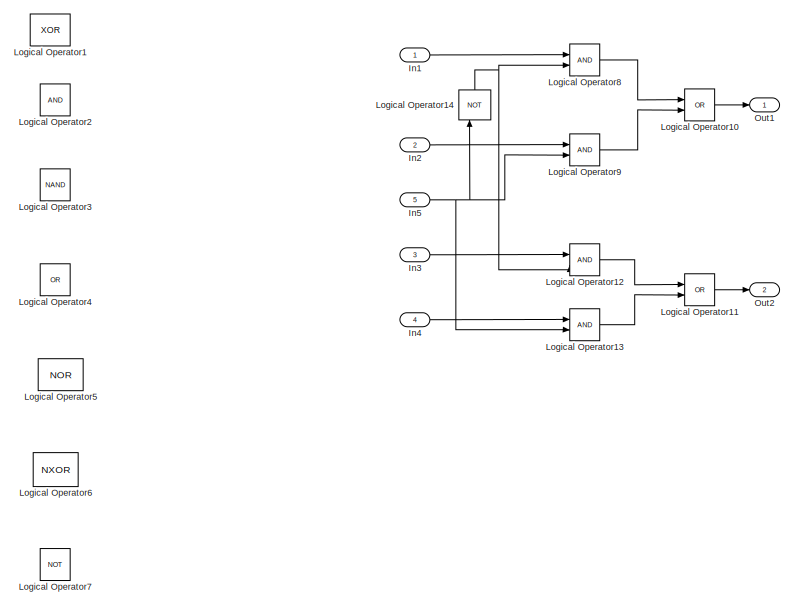
[diagram: root canvas - part 1/11, top right region]
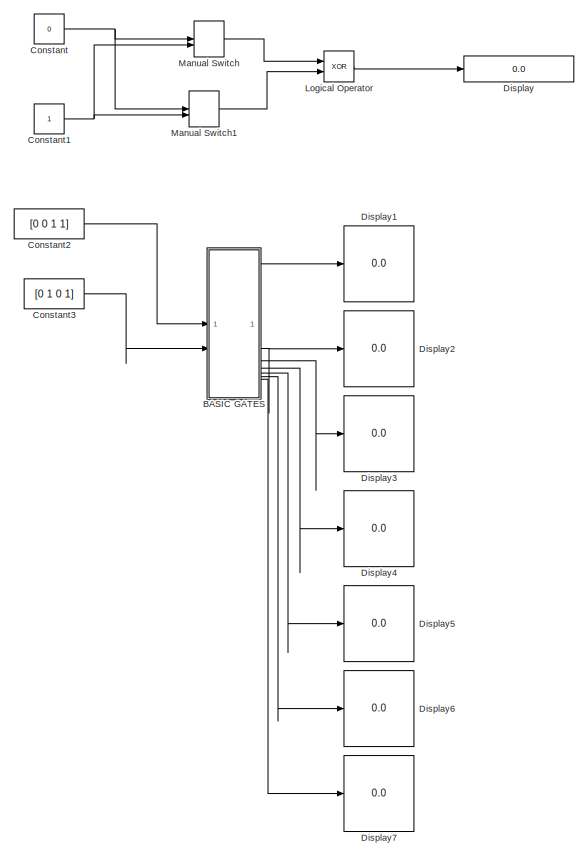
[diagram: root canvas - part 2/11, top left region]
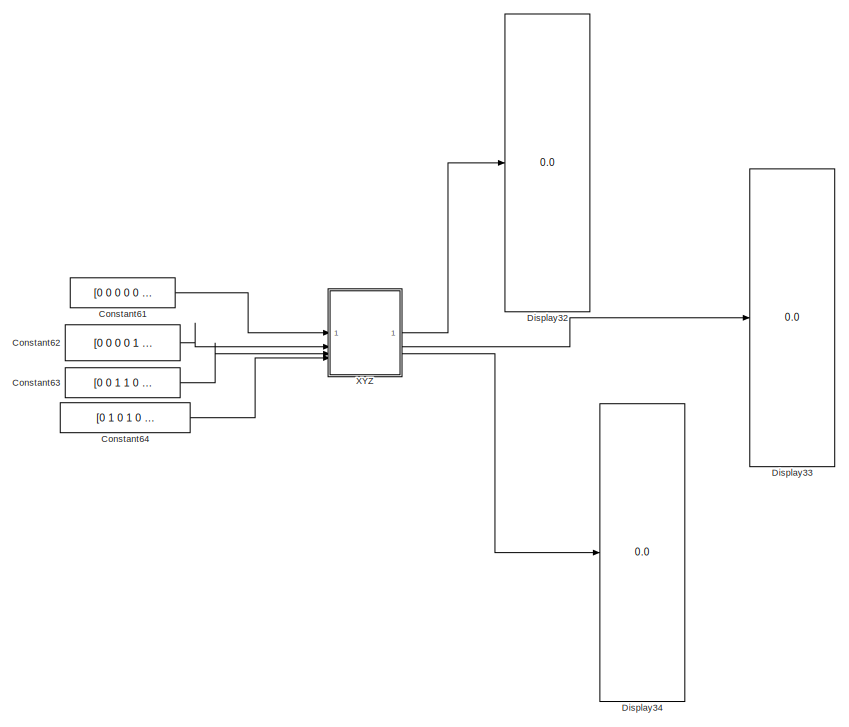
[diagram: root canvas - part 3/11, top right region]
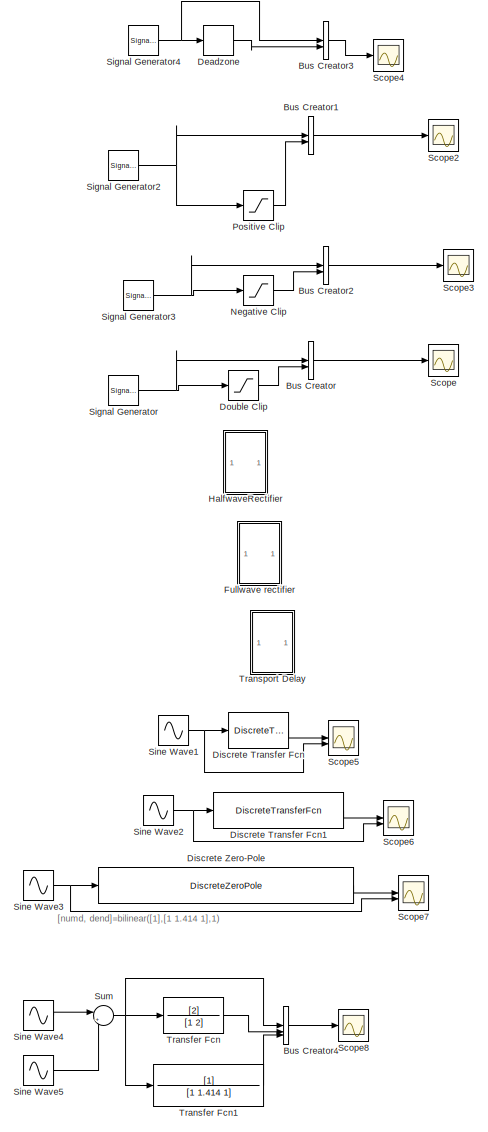
[diagram: root canvas - part 4/11, top left region]
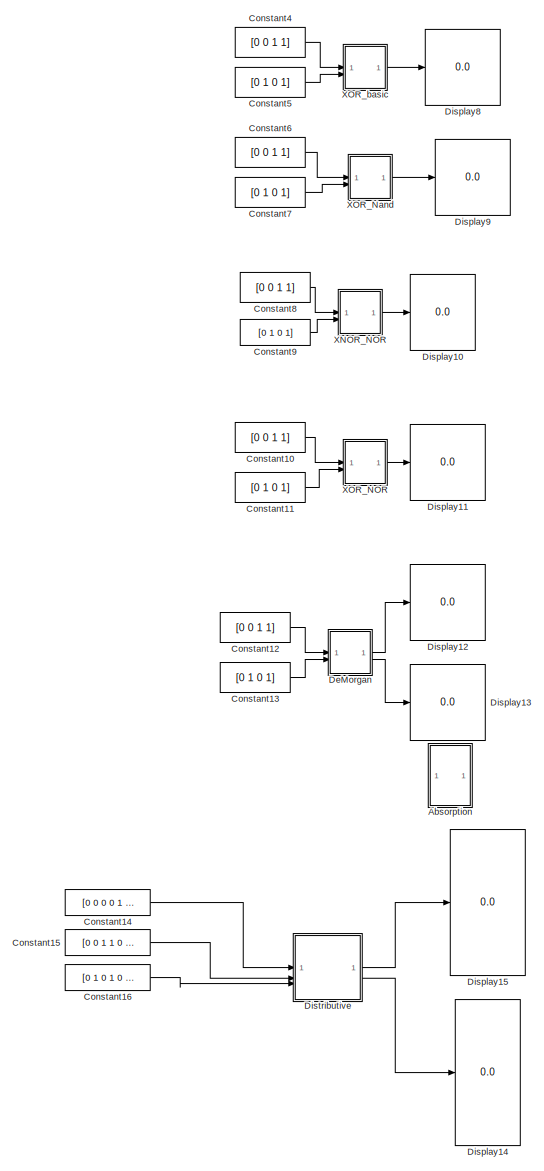
[diagram: root canvas - part 5/11, top left region]
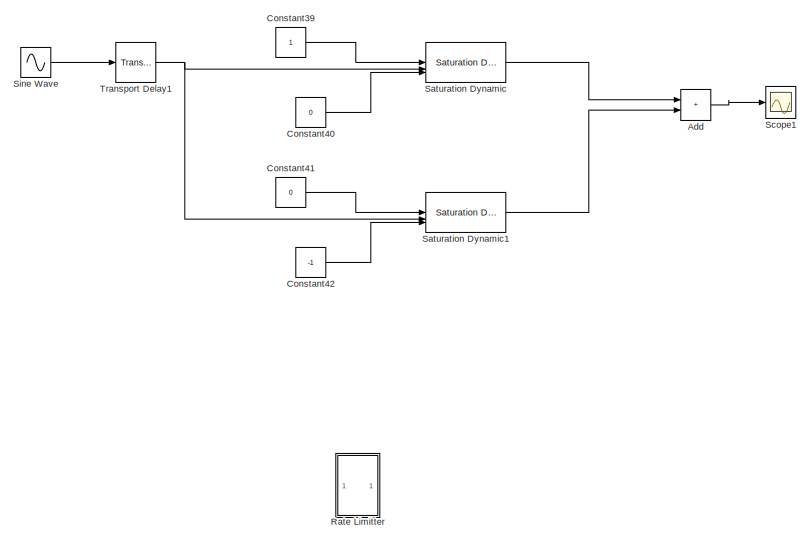
[diagram: root canvas - part 6/11, top center region]
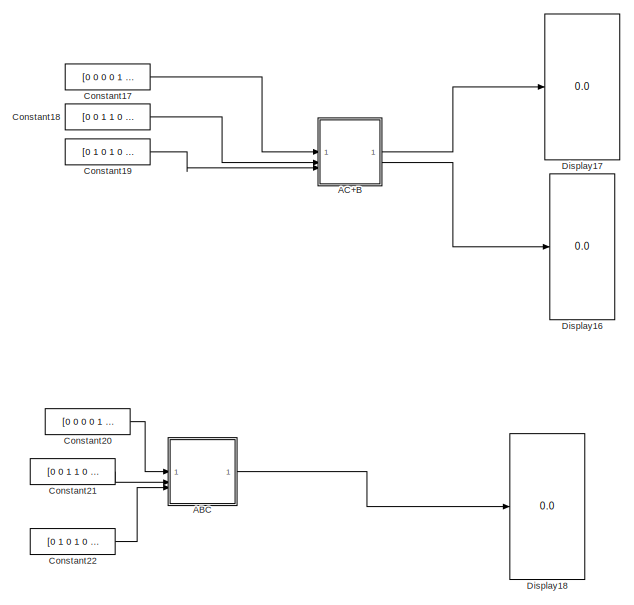
[diagram: root canvas - part 7/11, top left region]
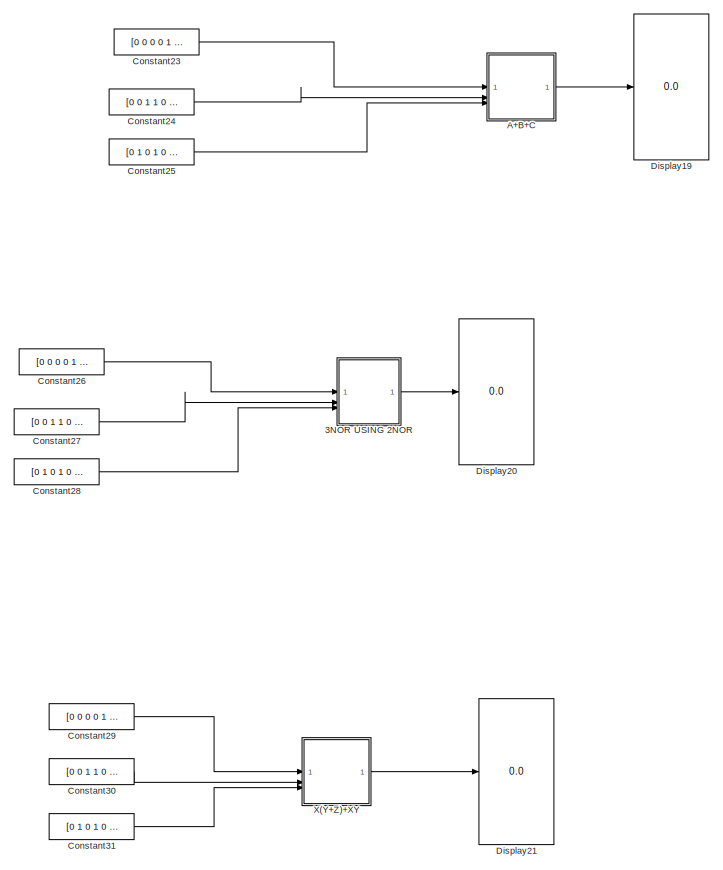
[diagram: root canvas - part 8/11, middle left region]
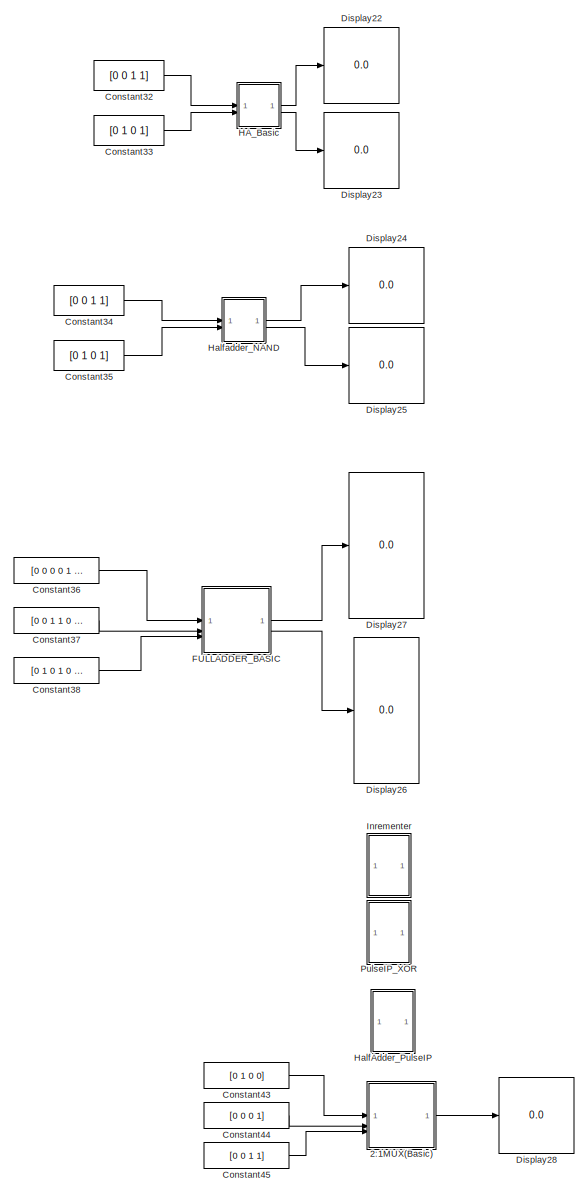
[diagram: root canvas - part 9/11, middle left region]
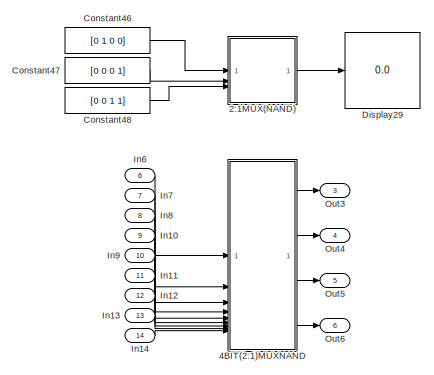
[diagram: root canvas - part 10/11, bottom left region]
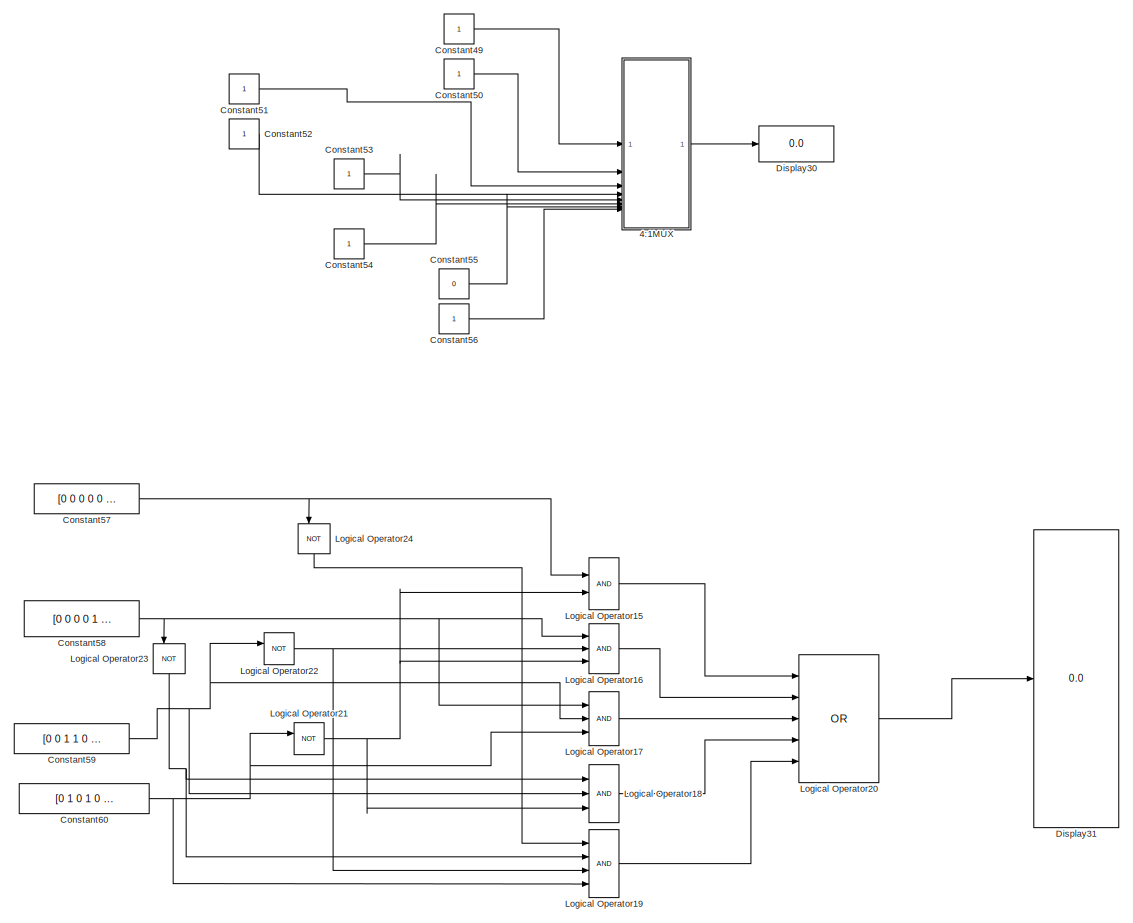
[diagram: root canvas - part 11/11, bottom left region]
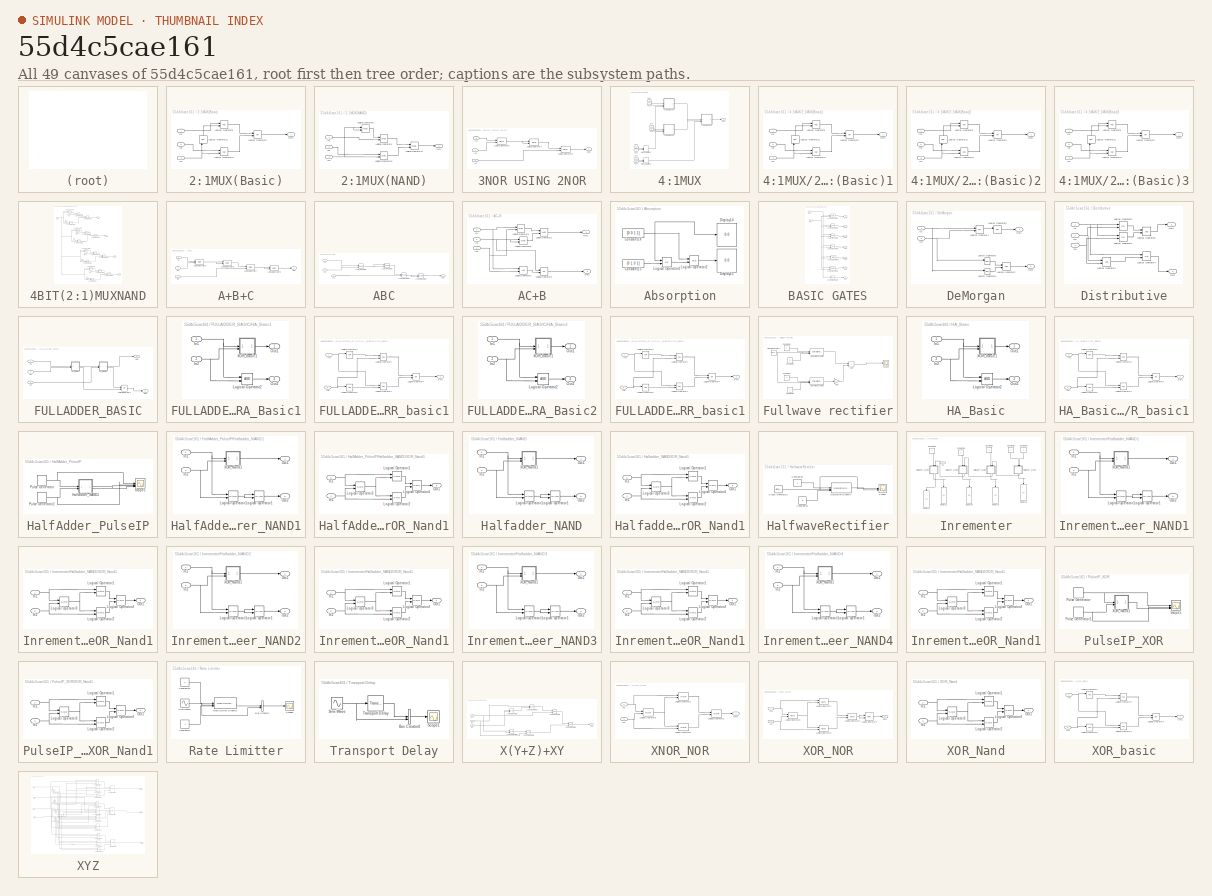
[diagram: thumbnail index - all 49 canvases of the model, root first then tree order]
MODEL slx_55d4c5cae161
KIND model
CONFIG AbsTol = auto
CONFIG EnableMultiTasking = off
CONFIG FixedStep = auto
CONFIG MaxStep = auto
CONFIG MinStep = auto
CONFIG RelTol = 1e-3
CONFIG SampleTimeConstraint = Unconstrained
CONFIG SolverName = VariableStepAuto
CONFIG StartTime = 0.0
CONFIG StopTime = 10.0
BLOCK [SubSystem] 2:1MUX(Basic)
BLOCK [Inport] 2:1MUX(Basic)/In1
BLOCK [Inport] 2:1MUX(Basic)/In2
  Port = 2
BLOCK [Inport] 2:1MUX(Basic)/In3
  Port = 3
BLOCK [Logic] 2:1MUX(Basic)/Logical Operator10
  AllPortsSameDT = off
  IconShape = distinctive
  OutDataTypeStr = boolean
BLOCK [Logic] 2:1MUX(Basic)/Logical Operator11
  AllPortsSameDT = off
  IconShape = distinctive
  NameLocation = right
  Operator = NOT
  OutDataTypeStr = boolean
BLOCK [Logic] 2:1MUX(Basic)/Logical Operator8
  AllPortsSameDT = off
  IconShape = distinctive
  OutDataTypeStr = boolean
BLOCK [Logic] 2:1MUX(Basic)/Logical Operator9
  AllPortsSameDT = off
  IconShape = distinctive
  Operator = OR
  OutDataTypeStr = boolean
BLOCK [Outport] 2:1MUX(Basic)/Out1
BLOCK [SubSystem] 2:1MUX(NAND)
BLOCK [Inport] 2:1MUX(NAND)/In1
BLOCK [Inport] 2:1MUX(NAND)/In2
  Port = 2
BLOCK [Inport] 2:1MUX(NAND)/In3
  Port = 3
BLOCK [Logic] 2:1MUX(NAND)/Logical Operator10
  AllPortsSameDT = off
  IconShape = distinctive
  Operator = NAND
  OutDataTypeStr = boolean
BLOCK [Logic] 2:1MUX(NAND)/Logical Operator11
  AllPortsSameDT = off
  IconShape = distinctive
  Operator = NAND
  OutDataTypeStr = boolean
BLOCK [Logic] 2:1MUX(NAND)/Logical Operator8
  AllPortsSameDT = off
  IconShape = distinctive
  Operator = NAND
  OutDataTypeStr = boolean
BLOCK [Logic] 2:1MUX(NAND)/Logical Operator9
  AllPortsSameDT = off
  IconShape = distinctive
  Operator = NAND
  OutDataTypeStr = boolean
BLOCK [Outport] 2:1MUX(NAND)/Out1
BLOCK [SubSystem] 3NOR USING 2NOR
BLOCK [Inport] 3NOR USING 2NOR/In1
BLOCK [Inport] 3NOR USING 2NOR/In2
  Port = 2
BLOCK [Inport] 3NOR USING 2NOR/In3
  Port = 3
BLOCK [Logic] 3NOR USING 2NOR/Logical Operator1
  AllPortsSameDT = off
  IconShape = distinctive
  Operator = NOR
  OutDataTypeStr = boolean
BLOCK [Logic] 3NOR USING 2NOR/Logical Operator2
  AllPortsSameDT = off
  IconShape = distinctive
  Operator = NOR
  OutDataTypeStr = boolean
BLOCK [Logic] 3NOR USING 2NOR/Logical Operator5
  AllPortsSameDT = off
  IconShape = distinctive
  Operator = NOR
  OutDataTypeStr = boolean
BLOCK [Outport] 3NOR USING 2NOR/Out1
BLOCK [SubSystem] 4:1MUX
BLOCK [SubSystem] 4:1MUX/2:1MUX(Basic)1
BLOCK [Inport] 4:1MUX/2:1MUX(Basic)1/In1
BLOCK [Inport] 4:1MUX/2:1MUX(Basic)1/In2
  Port = 2
BLOCK [Inport] 4:1MUX/2:1MUX(Basic)1/In3
  Port = 3
BLOCK [Logic] 4:1MUX/2:1MUX(Basic)1/Logical Operator10
  AllPortsSameDT = off
  IconShape = distinctive
  OutDataTypeStr = boolean
BLOCK [Logic] 4:1MUX/2:1MUX(Basic)1/Logical Operator11
  AllPortsSameDT = off
  IconShape = distinctive
  NameLocation = right
  Operator = NOT
  OutDataTypeStr = boolean
BLOCK [Logic] 4:1MUX/2:1MUX(Basic)1/Logical Operator8
  AllPortsSameDT = off
  IconShape = distinctive
  OutDataTypeStr = boolean
BLOCK [Logic] 4:1MUX/2:1MUX(Basic)1/Logical Operator9
  AllPortsSameDT = off
  IconShape = distinctive
  Operator = OR
  OutDataTypeStr = boolean
BLOCK [Outport] 4:1MUX/2:1MUX(Basic)1/Out1
BLOCK [SubSystem] 4:1MUX/2:1MUX(Basic)2
BLOCK [Inport] 4:1MUX/2:1MUX(Basic)2/In1
BLOCK [Inport] 4:1MUX/2:1MUX(Basic)2/In2
  Port = 2
BLOCK [Inport] 4:1MUX/2:1MUX(Basic)2/In3
  Port = 3
BLOCK [Logic] 4:1MUX/2:1MUX(Basic)2/Logical Operator10
  AllPortsSameDT = off
  IconShape = distinctive
  OutDataTypeStr = boolean
BLOCK [Logic] 4:1MUX/2:1MUX(Basic)2/Logical Operator11
  AllPortsSameDT = off
  IconShape = distinctive
  NameLocation = right
  Operator = NOT
  OutDataTypeStr = boolean
BLOCK [Logic] 4:1MUX/2:1MUX(Basic)2/Logical Operator8
  AllPortsSameDT = off
  IconShape = distinctive
  OutDataTypeStr = boolean
BLOCK [Logic] 4:1MUX/2:1MUX(Basic)2/Logical Operator9
  AllPortsSameDT = off
  IconShape = distinctive
  Operator = OR
  OutDataTypeStr = boolean
BLOCK [Outport] 4:1MUX/2:1MUX(Basic)2/Out1
BLOCK [SubSystem] 4:1MUX/2:1MUX(Basic)3
BLOCK [Inport] 4:1MUX/2:1MUX(Basic)3/In1
BLOCK [Inport] 4:1MUX/2:1MUX(Basic)3/In2
  Port = 2
BLOCK [Inport] 4:1MUX/2:1MUX(Basic)3/In3
  Port = 3
BLOCK [Logic] 4:1MUX/2:1MUX(Basic)3/Logical Operator10
  AllPortsSameDT = off
  IconShape = distinctive
  OutDataTypeStr = boolean
BLOCK [Logic] 4:1MUX/2:1MUX(Basic)3/Logical Operator11
  AllPortsSameDT = off
  IconShape = distinctive
  NameLocation = right
  Operator = NOT
  OutDataTypeStr = boolean
BLOCK [Logic] 4:1MUX/2:1MUX(Basic)3/Logical Operator8
  AllPortsSameDT = off
  IconShape = distinctive
  OutDataTypeStr = boolean
BLOCK [Logic] 4:1MUX/2:1MUX(Basic)3/Logical Operator9
  AllPortsSameDT = off
  IconShape = distinctive
  Operator = OR
  OutDataTypeStr = boolean
BLOCK [Outport] 4:1MUX/2:1MUX(Basic)3/Out1
BLOCK [Inport] 4:1MUX/In15
BLOCK [Inport] 4:1MUX/In16
  Port = 2
BLOCK [Inport] 4:1MUX/In17
  Port = 3
BLOCK [Inport] 4:1MUX/In18
  Port = 4
BLOCK [Inport] 4:1MUX/In19
  Port = 5
BLOCK [Inport] 4:1MUX/In20
  Port = 6
BLOCK [Inport] 4:1MUX/In21
  Port = 7
BLOCK [Inport] 4:1MUX/In22
  Port = 8
BLOCK [ManualSwitch] 4:1MUX/Manual Switch2
BLOCK [ManualSwitch] 4:1MUX/Manual Switch3
BLOCK [Outport] 4:1MUX/Out7
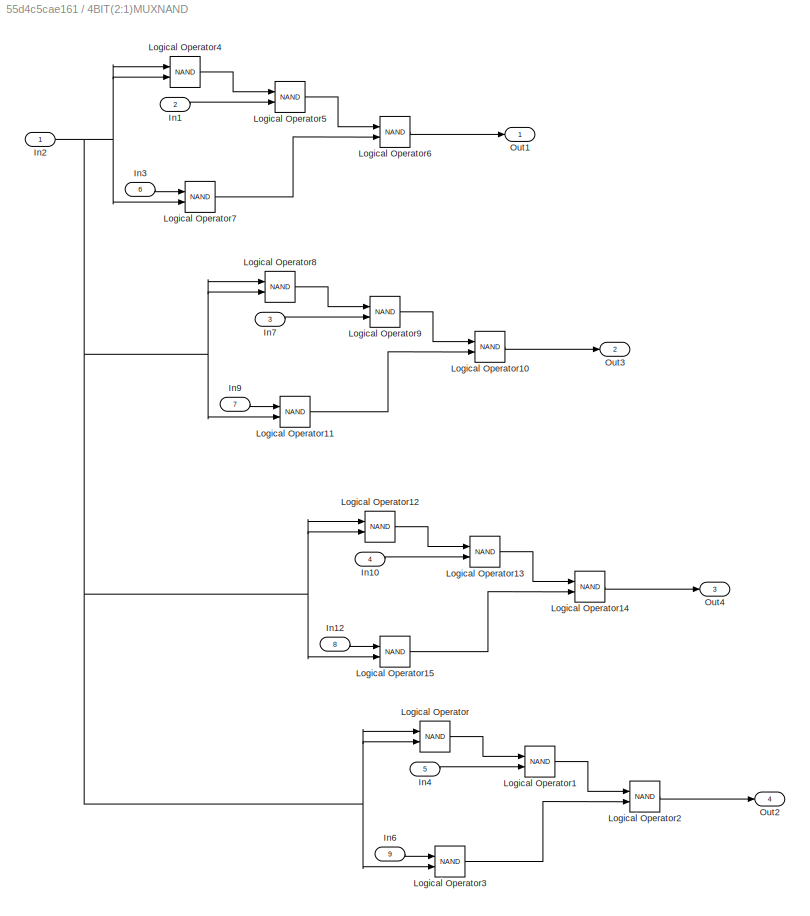
BLOCK [SubSystem] 4BIT(2:1)MUXNAND
BLOCK [Inport] 4BIT(2:1)MUXNAND/In1
  Port = 2
BLOCK [Inport] 4BIT(2:1)MUXNAND/In10
  Port = 4
BLOCK [Inport] 4BIT(2:1)MUXNAND/In12
  Port = 8
BLOCK [Inport] 4BIT(2:1)MUXNAND/In2
BLOCK [Inport] 4BIT(2:1)MUXNAND/In3
  Port = 6
BLOCK [Inport] 4BIT(2:1)MUXNAND/In4
  Port = 5
BLOCK [Inport] 4BIT(2:1)MUXNAND/In6
  Port = 9
BLOCK [Inport] 4BIT(2:1)MUXNAND/In7
  Port = 3
BLOCK [Inport] 4BIT(2:1)MUXNAND/In9
  Port = 7
BLOCK [Logic] 4BIT(2:1)MUXNAND/Logical Operator
  AllPortsSameDT = off
  Operator = NAND
  OutDataTypeStr = boolean
BLOCK [Logic] 4BIT(2:1)MUXNAND/Logical Operator1
  AllPortsSameDT = off
  Operator = NAND
  OutDataTypeStr = boolean
BLOCK [Logic] 4BIT(2:1)MUXNAND/Logical Operator10
  AllPortsSameDT = off
  Operator = NAND
  OutDataTypeStr = boolean
BLOCK [Logic] 4BIT(2:1)MUXNAND/Logical Operator11
  AllPortsSameDT = off
  Operator = NAND
  OutDataTypeStr = boolean
BLOCK [Logic] 4BIT(2:1)MUXNAND/Logical Operator12
  AllPortsSameDT = off
  Operator = NAND
  OutDataTypeStr = boolean
BLOCK [Logic] 4BIT(2:1)MUXNAND/Logical Operator13
  AllPortsSameDT = off
  Operator = NAND
  OutDataTypeStr = boolean
BLOCK [Logic] 4BIT(2:1)MUXNAND/Logical Operator14
  AllPortsSameDT = off
  Operator = NAND
  OutDataTypeStr = boolean
BLOCK [Logic] 4BIT(2:1)MUXNAND/Logical Operator15
  AllPortsSameDT = off
  Operator = NAND
  OutDataTypeStr = boolean
BLOCK [Logic] 4BIT(2:1)MUXNAND/Logical Operator2
  AllPortsSameDT = off
  Operator = NAND
  OutDataTypeStr = boolean
BLOCK [Logic] 4BIT(2:1)MUXNAND/Logical Operator3
  AllPortsSameDT = off
  Operator = NAND
  OutDataTypeStr = boolean
BLOCK [Logic] 4BIT(2:1)MUXNAND/Logical Operator4
  AllPortsSameDT = off
  Operator = NAND
  OutDataTypeStr = boolean
BLOCK [Logic] 4BIT(2:1)MUXNAND/Logical Operator5
  AllPortsSameDT = off
  Operator = NAND
  OutDataTypeStr = boolean
BLOCK [Logic] 4BIT(2:1)MUXNAND/Logical Operator6
  AllPortsSameDT = off
  Operator = NAND
  OutDataTypeStr = boolean
BLOCK [Logic] 4BIT(2:1)MUXNAND/Logical Operator7
  AllPortsSameDT = off
  Operator = NAND
  OutDataTypeStr = boolean
BLOCK [Logic] 4BIT(2:1)MUXNAND/Logical Operator8
  AllPortsSameDT = off
  Operator = NAND
  OutDataTypeStr = boolean
BLOCK [Logic] 4BIT(2:1)MUXNAND/Logical Operator9
  AllPortsSameDT = off
  Operator = NAND
  OutDataTypeStr = boolean
BLOCK [Outport] 4BIT(2:1)MUXNAND/Out1
BLOCK [Outport] 4BIT(2:1)MUXNAND/Out2
  Port = 4
BLOCK [Outport] 4BIT(2:1)MUXNAND/Out3
  Port = 2
BLOCK [Outport] 4BIT(2:1)MUXNAND/Out4
  Port = 3
BLOCK [SubSystem] A+B+C
BLOCK [Inport] A+B+C/In1
BLOCK [Inport] A+B+C/In2
  Port = 2
BLOCK [Inport] A+B+C/In3
  Port = 3
BLOCK [Logic] A+B+C/Logical Operator3
  AllPortsSameDT = off
  IconShape = distinctive
  Operator = NOR
  OutDataTypeStr = boolean
BLOCK [Logic] A+B+C/Logical Operator6
  AllPortsSameDT = off
  IconShape = distinctive
  Operator = NOR
  OutDataTypeStr = boolean
BLOCK [Logic] A+B+C/Logical Operator7
  AllPortsSameDT = off
  IconShape = distinctive
  Operator = NOR
  OutDataTypeStr = boolean
BLOCK [Logic] A+B+C/Logical Operator8
  AllPortsSameDT = off
  IconShape = distinctive
  Operator = NOR
  OutDataTypeStr = boolean
BLOCK [Outport] A+B+C/Out1
BLOCK [SubSystem] ABC
BLOCK [Inport] ABC/In1
BLOCK [Inport] ABC/In2
  Port = 2
BLOCK [Inport] ABC/In3
  Port = 3
BLOCK [Logic] ABC/Logical Operator1
  AllPortsSameDT = off
  IconShape = distinctive
  Operator = NAND
  OutDataTypeStr = boolean
BLOCK [Logic] ABC/Logical Operator2
  AllPortsSameDT = off
  IconShape = distinctive
  Operator = NAND
  OutDataTypeStr = boolean
BLOCK [Logic] ABC/Logical Operator3
  AllPortsSameDT = off
  IconShape = distinctive
  Operator = NAND
  OutDataTypeStr = boolean
BLOCK [Logic] ABC/Logical Operator4
  AllPortsSameDT = off
  IconShape = distinctive
  Operator = NAND
  OutDataTypeStr = boolean
BLOCK [Outport] ABC/Out1
BLOCK [SubSystem] AC+B
BLOCK [Inport] AC+B/In1
BLOCK [Inport] AC+B/In2
  Port = 2
BLOCK [Inport] AC+B/In3
  Port = 3
BLOCK [Logic] AC+B/Logical Operator1
  AllPortsSameDT = off
  IconShape = distinctive
  Operator = NAND
  OutDataTypeStr = boolean
BLOCK [Logic] AC+B/Logical Operator2
  AllPortsSameDT = off
  IconShape = distinctive
  OutDataTypeStr = boolean
BLOCK [Logic] AC+B/Logical Operator3
  AllPortsSameDT = off
  IconShape = distinctive
  Operator = NAND
  OutDataTypeStr = boolean
BLOCK [Logic] AC+B/Logical Operator4
  AllPortsSameDT = off
  IconShape = distinctive
  Operator = OR
  OutDataTypeStr = boolean
BLOCK [Logic] AC+B/Logical Operator6
  AllPortsSameDT = off
  IconShape = distinctive
  Operator = NAND
  OutDataTypeStr = boolean
BLOCK [Outport] AC+B/Out1
BLOCK [Outport] AC+B/Out2
  Port = 2
BLOCK [SubSystem] Absorption
BLOCK [Constant] Absorption/Constant14
  Value = [0 0 1 1]
BLOCK [Constant] Absorption/Constant15
  Value = [0 1 0 1]
BLOCK [Display] Absorption/Display14
  Decimation = 1
BLOCK [Display] Absorption/Display15
  Decimation = 1
BLOCK [Logic] Absorption/Logical Operator2
  AllPortsSameDT = off
  IconShape = distinctive
  OutDataTypeStr = boolean
BLOCK [Logic] Absorption/Logical Operator4
  AllPortsSameDT = off
  IconShape = distinctive
  Operator = OR
  OutDataTypeStr = boolean
BLOCK [Sum] Add
  IconShape = rectangular
BLOCK [SubSystem] BASIC GATES
BLOCK [Inport] BASIC GATES/In1
BLOCK [Inport] BASIC GATES/In2
  Port = 2
BLOCK [Logic] BASIC GATES/Logical Operator1
  AllPortsSameDT = off
  IconShape = distinctive
  Operator = XOR
  OutDataTypeStr = boolean
BLOCK [Logic] BASIC GATES/Logical Operator2
  AllPortsSameDT = off
  IconShape = distinctive
  OutDataTypeStr = boolean
BLOCK [Logic] BASIC GATES/Logical Operator3
  AllPortsSameDT = off
  IconShape = distinctive
  Operator = NAND
  OutDataTypeStr = boolean
BLOCK [Logic] BASIC GATES/Logical Operator4
  AllPortsSameDT = off
  IconShape = distinctive
  Operator = OR
  OutDataTypeStr = boolean
BLOCK [Logic] BASIC GATES/Logical Operator5
  AllPortsSameDT = off
  IconShape = distinctive
  Operator = NOR
  OutDataTypeStr = boolean
BLOCK [Logic] BASIC GATES/Logical Operator6
  AllPortsSameDT = off
  IconShape = distinctive
  Operator = NXOR
  OutDataTypeStr = boolean
BLOCK [Logic] BASIC GATES/Logical Operator7
  AllPortsSameDT = off
  IconShape = distinctive
  Operator = NOT
  OutDataTypeStr = boolean
BLOCK [Outport] BASIC GATES/Out1
BLOCK [Outport] BASIC GATES/Out2
  Port = 2
BLOCK [Outport] BASIC GATES/Out3
  Port = 3
BLOCK [Outport] BASIC GATES/Out4
  Port = 4
BLOCK [Outport] BASIC GATES/Out5
  Port = 5
BLOCK [Outport] BASIC GATES/Out6
  Port = 6
BLOCK [Outport] BASIC GATES/Out7
  Port = 7
BLOCK [BusCreator] Bus Creator
  DisplayOption = bar
  InheritFromInputs = on
  Inputs = 2
BLOCK [BusCreator] Bus Creator1
  DisplayOption = bar
  InheritFromInputs = on
  Inputs = 2
BLOCK [BusCreator] Bus Creator2
  DisplayOption = bar
  InheritFromInputs = on
  Inputs = 2
BLOCK [BusCreator] Bus Creator3
  DisplayOption = bar
  InheritFromInputs = on
  Inputs = 2
BLOCK [BusCreator] Bus Creator4
  DisplayOption = bar
  InheritFromInputs = on
  Inputs = 3
BLOCK [Constant] Constant
  Value = 0
BLOCK [Constant] Constant1
BLOCK [Constant] Constant10
  Value = [0 0 1 1]
BLOCK [Constant] Constant11
  Value = [0 1 0 1]
BLOCK [Constant] Constant12
  Value = [0 0 1 1]
BLOCK [Constant] Constant13
  Value = [0 1 0 1]
BLOCK [Constant] Constant14
  Value = [0 0 0 0 1 1 1 1]
BLOCK [Constant] Constant15
  Value = [0 0 1 1 0 0 1 1]
BLOCK [Constant] Constant16
  Value = [0 1 0 1 0 1 0 1]
BLOCK [Constant] Constant17
  Value = [0 0 0 0 1 1 1 1]
BLOCK [Constant] Constant18
  Value = [0 0 1 1 0 0 1 1]
BLOCK [Constant] Constant19
  Value = [0 1 0 1 0 1 0 1]
BLOCK [Constant] Constant2
  Value = [0 0 1 1]
BLOCK [Constant] Constant20
  Value = [0 0 0 0 1 1 1 1]
BLOCK [Constant] Constant21
  Value = [0 0 1 1 0 0 1 1]
BLOCK [Constant] Constant22
  Value = [0 1 0 1 0 1 0 1]
BLOCK [Constant] Constant23
  Value = [0 0 0 0 1 1 1 1]
BLOCK [Constant] Constant24
  Value = [0 0 1 1 0 0 1 1]
BLOCK [Constant] Constant25
  Value = [0 1 0 1 0 1 0 1]
BLOCK [Constant] Constant26
  Value = [0 0 0 0 1 1 1 1]
BLOCK [Constant] Constant27
  Value = [0 0 1 1 0 0 1 1]
BLOCK [Constant] Constant28
  Value = [0 1 0 1 0 1 0 1]
BLOCK [Constant] Constant29
  Value = [0 0 0 0 1 1 1 1]
BLOCK [Constant] Constant3
  Value = [0 1 0 1]
BLOCK [Constant] Constant30
  Value = [0 0 1 1 0 0 1 1]
BLOCK [Constant] Constant31
  Value = [0 1 0 1 0 1 0 1]
BLOCK [Constant] Constant32
  Value = [0 0 1 1]
BLOCK [Constant] Constant33
  Value = [0 1 0 1]
BLOCK [Constant] Constant34
  Value = [0 0 1 1]
BLOCK [Constant] Constant35
  Value = [0 1 0 1]
BLOCK [Constant] Constant36
  Value = [0 0 0 0 1 1 1 1]
BLOCK [Constant] Constant37
  Value = [0 0 1 1 0 0 1 1]
BLOCK [Constant] Constant38
  Value = [0 1 0 1 0 1 0 1]
BLOCK [Constant] Constant39
BLOCK [Constant] Constant4
  Value = [0 0 1 1]
BLOCK [Constant] Constant40
  Value = 0
BLOCK [Constant] Constant41
  Value = 0
BLOCK [Constant] Constant42
  Value = -1
BLOCK [Constant] Constant43
  Value = [0 1 0 0]
BLOCK [Constant] Constant44
  Value = [0 0 0 1]
BLOCK [Constant] Constant45
  Value = [0 0 1 1]
BLOCK [Constant] Constant46
  Value = [0 1 0 0]
BLOCK [Constant] Constant47
  Value = [0 0 0 1]
BLOCK [Constant] Constant48
  Value = [0 0 1 1]
BLOCK [Constant] Constant49
BLOCK [Constant] Constant5
  Value = [0 1 0 1]
BLOCK [Constant] Constant50
BLOCK [Constant] Constant51
BLOCK [Constant] Constant52
BLOCK [Constant] Constant53
BLOCK [Constant] Constant54
BLOCK [Constant] Constant55
  Value = 0
BLOCK [Constant] Constant56
BLOCK [Constant] Constant57
  Value = [0 0 0 0 0 0 0 0 1 1 1 1 1 1 1 1]
BLOCK [Constant] Constant58
  Value = [0 0 0 0 1 1 1 1 0 0 0 0 1 1 1 1]
BLOCK [Constant] Constant59
  Value = [0 0 1 1 0 0 1 1 0 0 1 1 0 0 1 1]
BLOCK [Constant] Constant6
  Value = [0 0 1 1]
BLOCK [Constant] Constant60
  Value = [0 1 0 1 0 1 0 1 0 1 0 1 0 1 0 1]
BLOCK [Constant] Constant61
  Value = [0 0 0 0 0 0 0 0 1 1 1 1 1 1 1 1]
BLOCK [Constant] Constant62
  Value = [0 0 0 0 1 1 1 1 0 0 0 0 1 1 1 1]
BLOCK [Constant] Constant63
  Value = [0 0 1 1 0 0 1 1 0 0 1 1 0 0 1 1]
BLOCK [Constant] Constant64
  Value = [0 1 0 1 0 1 0 1 0 1 0 1 0 1 0 1]
BLOCK [Constant] Constant7
  Value = [0 1 0 1]
BLOCK [Constant] Constant8
  Value = [0 0 1 1]
BLOCK [Constant] Constant9
  Value = [0 1 0 1]
BLOCK [SubSystem] DeMorgan
BLOCK [Inport] DeMorgan/In1
BLOCK [Inport] DeMorgan/In2
  Port = 2
BLOCK [Logic] DeMorgan/Logical Operator1
  AllPortsSameDT = off
  IconShape = distinctive
  Operator = NOT
  OutDataTypeStr = boolean
BLOCK [Logic] DeMorgan/Logical Operator2
  AllPortsSameDT = off
  IconShape = distinctive
  OutDataTypeStr = boolean
BLOCK [Logic] DeMorgan/Logical Operator3
  AllPortsSameDT = off
  IconShape = distinctive
  Operator = NOT
  OutDataTypeStr = boolean
BLOCK [Logic] DeMorgan/Logical Operator4
  AllPortsSameDT = off
  IconShape = distinctive
  Operator = OR
  OutDataTypeStr = boolean
BLOCK [Logic] DeMorgan/Logical Operator5
  AllPortsSameDT = off
  IconShape = distinctive
  Operator = NOT
  OutDataTypeStr = boolean
BLOCK [Outport] DeMorgan/Out1
BLOCK [Outport] DeMorgan/Out2
  Port = 2
BLOCK [DeadZone] Deadzone
  LowerValue = -0.25
  UpperValue = 0.25
BLOCK [DiscreteTransferFcn] Discrete Transfer Fcn
  Denominator = [3 -1]
  InputPortMap = u0
  Numerator = [1 1]
BLOCK [DiscreteTransferFcn] Discrete Transfer Fcn1
  Denominator = [1 2 1]
  InputPortMap = u0
  Numerator = [7.828 -6 2.171]
BLOCK [DiscreteZeroPole] Discrete Zero-Pole
  Gain = 1/7.828
  Poles = [0.383-0.36i 0.383+0.36i]
  SampleTime = -1
  Zeros = [-1 -1]
BLOCK [Display] Display
  Decimation = 1
BLOCK [Display] Display1
  Decimation = 1
BLOCK [Display] Display10
  Decimation = 1
BLOCK [Display] Display11
  Decimation = 1
BLOCK [Display] Display12
  Decimation = 1
BLOCK [Display] Display13
  Decimation = 1
BLOCK [Display] Display14
  Decimation = 1
BLOCK [Display] Display15
  Decimation = 1
BLOCK [Display] Display16
  Decimation = 1
BLOCK [Display] Display17
  Decimation = 1
BLOCK [Display] Display18
  Decimation = 1
BLOCK [Display] Display19
  Decimation = 1
BLOCK [Display] Display2
  Decimation = 1
BLOCK [Display] Display20
  Decimation = 1
BLOCK [Display] Display21
  Decimation = 1
BLOCK [Display] Display22
  Decimation = 1
BLOCK [Display] Display23
  Decimation = 1
BLOCK [Display] Display24
  Decimation = 1
BLOCK [Display] Display25
  Decimation = 1
BLOCK [Display] Display26
  Decimation = 1
BLOCK [Display] Display27
  Decimation = 1
BLOCK [Display] Display28
  Decimation = 1
BLOCK [Display] Display29
  Decimation = 1
BLOCK [Display] Display3
  Decimation = 1
BLOCK [Display] Display30
  Decimation = 1
BLOCK [Display] Display31
  Decimation = 1
BLOCK [Display] Display32
  Decimation = 1
BLOCK [Display] Display33
  Decimation = 1
BLOCK [Display] Display34
  Decimation = 1
BLOCK [Display] Display4
  Decimation = 1
BLOCK [Display] Display5
  Decimation = 1
BLOCK [Display] Display6
  Decimation = 1
BLOCK [Display] Display7
  Decimation = 1
BLOCK [Display] Display8
  Decimation = 1
BLOCK [Display] Display9
  Decimation = 1
BLOCK [SubSystem] Distributive
BLOCK [Inport] Distributive/In1
BLOCK [Inport] Distributive/In2
  Port = 2
BLOCK [Inport] Distributive/In3
  Port = 3
BLOCK [Logic] Distributive/Logical Operator1
  AllPortsSameDT = off
  IconShape = distinctive
  Operator = OR
  OutDataTypeStr = boolean
BLOCK [Logic] Distributive/Logical Operator2
  AllPortsSameDT = off
  IconShape = distinctive
  OutDataTypeStr = boolean
BLOCK [Logic] Distributive/Logical Operator3
  AllPortsSameDT = off
  IconShape = distinctive
  Operator = OR
  OutDataTypeStr = boolean
BLOCK [Logic] Distributive/Logical Operator4
  AllPortsSameDT = off
  IconShape = distinctive
  Operator = OR
  OutDataTypeStr = boolean
BLOCK [Logic] Distributive/Logical Operator5
  AllPortsSameDT = off
  IconShape = distinctive
  OutDataTypeStr = boolean
BLOCK [Outport] Distributive/Out1
BLOCK [Outport] Distributive/Out2
  Port = 2
BLOCK [Saturate] Double Clip
BLOCK [SubSystem] FULLADDER_BASIC
BLOCK [SubSystem] FULLADDER_BASIC/HA_Basic1
BLOCK [Inport] FULLADDER_BASIC/HA_Basic1/In1
BLOCK [Inport] FULLADDER_BASIC/HA_Basic1/In2
  Port = 2
BLOCK [Logic] FULLADDER_BASIC/HA_Basic1/Logical Operator2
  AllPortsSameDT = off
  IconShape = distinctive
  OutDataTypeStr = boolean
BLOCK [Outport] FULLADDER_BASIC/HA_Basic1/Out1
BLOCK [Outport] FULLADDER_BASIC/HA_Basic1/Out2
  Port = 2
BLOCK [SubSystem] FULLADDER_BASIC/HA_Basic1/XOR_basic1
BLOCK [Inport] FULLADDER_BASIC/HA_Basic1/XOR_basic1/In1
BLOCK [Inport] FULLADDER_BASIC/HA_Basic1/XOR_basic1/In2
  Port = 2
BLOCK [Logic] FULLADDER_BASIC/HA_Basic1/XOR_basic1/Logical Operator1
  AllPortsSameDT = off
  IconShape = distinctive
  OutDataTypeStr = boolean
BLOCK [Logic] FULLADDER_BASIC/HA_Basic1/XOR_basic1/Logical Operator2
  AllPortsSameDT = off
  IconShape = distinctive
  OutDataTypeStr = boolean
BLOCK [Logic] FULLADDER_BASIC/HA_Basic1/XOR_basic1/Logical Operator3
  AllPortsSameDT = off
  IconShape = distinctive
  Operator = NOT
  OutDataTypeStr = boolean
BLOCK [Logic] FULLADDER_BASIC/HA_Basic1/XOR_basic1/Logical Operator4
  AllPortsSameDT = off
  IconShape = distinctive
  Operator = OR
  OutDataTypeStr = boolean
BLOCK [Logic] FULLADDER_BASIC/HA_Basic1/XOR_basic1/Logical Operator5
  AllPortsSameDT = off
  IconShape = distinctive
  Operator = NOT
  OutDataTypeStr = boolean
BLOCK [Outport] FULLADDER_BASIC/HA_Basic1/XOR_basic1/Out1
BLOCK [SubSystem] FULLADDER_BASIC/HA_Basic2
BLOCK [Inport] FULLADDER_BASIC/HA_Basic2/In1
BLOCK [Inport] FULLADDER_BASIC/HA_Basic2/In2
  Port = 2
BLOCK [Logic] FULLADDER_BASIC/HA_Basic2/Logical Operator2
  AllPortsSameDT = off
  IconShape = distinctive
  OutDataTypeStr = boolean
BLOCK [Outport] FULLADDER_BASIC/HA_Basic2/Out1
BLOCK [Outport] FULLADDER_BASIC/HA_Basic2/Out2
  Port = 2
BLOCK [SubSystem] FULLADDER_BASIC/HA_Basic2/XOR_basic1
BLOCK [Inport] FULLADDER_BASIC/HA_Basic2/XOR_basic1/In1
BLOCK [Inport] FULLADDER_BASIC/HA_Basic2/XOR_basic1/In2
  Port = 2
BLOCK [Logic] FULLADDER_BASIC/HA_Basic2/XOR_basic1/Logical Operator1
  AllPortsSameDT = off
  IconShape = distinctive
  OutDataTypeStr = boolean
BLOCK [Logic] FULLADDER_BASIC/HA_Basic2/XOR_basic1/Logical Operator2
  AllPortsSameDT = off
  IconShape = distinctive
  OutDataTypeStr = boolean
BLOCK [Logic] FULLADDER_BASIC/HA_Basic2/XOR_basic1/Logical Operator3
  AllPortsSameDT = off
  IconShape = distinctive
  Operator = NOT
  OutDataTypeStr = boolean
BLOCK [Logic] FULLADDER_BASIC/HA_Basic2/XOR_basic1/Logical Operator4
  AllPortsSameDT = off
  IconShape = distinctive
  Operator = OR
  OutDataTypeStr = boolean
BLOCK [Logic] FULLADDER_BASIC/HA_Basic2/XOR_basic1/Logical Operator5
  AllPortsSameDT = off
  IconShape = distinctive
  Operator = NOT
  OutDataTypeStr = boolean
BLOCK [Outport] FULLADDER_BASIC/HA_Basic2/XOR_basic1/Out1
BLOCK [Inport] FULLADDER_BASIC/In1
BLOCK [Inport] FULLADDER_BASIC/In2
  Port = 2
BLOCK [Inport] FULLADDER_BASIC/In3
  Port = 3
BLOCK [Logic] FULLADDER_BASIC/Logical Operator4
  AllPortsSameDT = off
  IconShape = distinctive
  Operator = OR
  OutDataTypeStr = boolean
BLOCK [Outport] FULLADDER_BASIC/Out1
BLOCK [Outport] FULLADDER_BASIC/Out2
  Port = 2
BLOCK [SubSystem] Fullwave rectifier
BLOCK [Sum] Fullwave rectifier/Add
  IconShape = rectangular
BLOCK [Constant] Fullwave rectifier/Constant39
BLOCK [Constant] Fullwave rectifier/Constant40
  Value = 0
BLOCK [Constant] Fullwave rectifier/Constant41
  Value = 0
BLOCK [Constant] Fullwave rectifier/Constant42
  Value = -1
BLOCK [Gain] Fullwave rectifier/Gain
  Gain = -1
BLOCK [Reference] Fullwave rectifier/Saturation Dynamic  REF=simulink/Discontinuities/Saturation
Dynamic
  SourceBlock = simulink/Discontinuities/Saturation\nDynamic
  SourceType = Saturation Dynamic
BLOCK [Reference] Fullwave rectifier/Saturation Dynamic1  REF=simulink/Discontinuities/Saturation
Dynamic
  SourceBlock = simulink/Discontinuities/Saturation\nDynamic
  SourceType = Saturation Dynamic
BLOCK [Scope] Fullwave rectifier/Scope1
  Floating = off
  NumInputPorts = 1
  ScopeSpecificationString = Simulink.scopes.TimeScopeBlockCfg('CurrentConfiguration', extmgr.ConfigurationSet(extmgr.Configuration('Core','General UI',true),extmgr.Configuration('Core','Source UI',true),extmgr.Configuration('Sources','WiredSimulink',true,'DataLoggingVariableName','ScopeData5'),extmgr.Configuration('Visuals','Time Domain',true,'SerializedDisplays',{struct('MinYLimReal','-0.12495','MaxYLimReal','1.12452','YLab...<+1362ch>
BLOCK [SignalGenerator] Fullwave rectifier/Signal Generator1
  Units = rad/sec
BLOCK [SubSystem] HA_Basic
BLOCK [Inport] HA_Basic/In1
BLOCK [Inport] HA_Basic/In2
  Port = 2
BLOCK [Logic] HA_Basic/Logical Operator2
  AllPortsSameDT = off
  IconShape = distinctive
  OutDataTypeStr = boolean
BLOCK [Outport] HA_Basic/Out1
BLOCK [Outport] HA_Basic/Out2
  Port = 2
BLOCK [SubSystem] HA_Basic/XOR_basic1
BLOCK [Inport] HA_Basic/XOR_basic1/In1
BLOCK [Inport] HA_Basic/XOR_basic1/In2
  Port = 2
BLOCK [Logic] HA_Basic/XOR_basic1/Logical Operator1
  AllPortsSameDT = off
  IconShape = distinctive
  OutDataTypeStr = boolean
BLOCK [Logic] HA_Basic/XOR_basic1/Logical Operator2
  AllPortsSameDT = off
  IconShape = distinctive
  OutDataTypeStr = boolean
BLOCK [Logic] HA_Basic/XOR_basic1/Logical Operator3
  AllPortsSameDT = off
  IconShape = distinctive
  Operator = NOT
  OutDataTypeStr = boolean
BLOCK [Logic] HA_Basic/XOR_basic1/Logical Operator4
  AllPortsSameDT = off
  IconShape = distinctive
  Operator = OR
  OutDataTypeStr = boolean
BLOCK [Logic] HA_Basic/XOR_basic1/Logical Operator5
  AllPortsSameDT = off
  IconShape = distinctive
  Operator = NOT
  OutDataTypeStr = boolean
BLOCK [Outport] HA_Basic/XOR_basic1/Out1
BLOCK [SubSystem] HalfAdder_PulseIP
BLOCK [SubSystem] HalfAdder_PulseIP/Halfadder_NAND1
BLOCK [Inport] HalfAdder_PulseIP/Halfadder_NAND1/In1
BLOCK [Inport] HalfAdder_PulseIP/Halfadder_NAND1/In2
  Port = 2
BLOCK [Logic] HalfAdder_PulseIP/Halfadder_NAND1/Logical Operator1
  AllPortsSameDT = off
  IconShape = distinctive
  Operator = NAND
  OutDataTypeStr = boolean
BLOCK [Logic] HalfAdder_PulseIP/Halfadder_NAND1/Logical Operator3
  AllPortsSameDT = off
  IconShape = distinctive
  Operator = NAND
  OutDataTypeStr = boolean
BLOCK [Outport] HalfAdder_PulseIP/Halfadder_NAND1/Out1
BLOCK [Outport] HalfAdder_PulseIP/Halfadder_NAND1/Out2
  Port = 2
BLOCK [SubSystem] HalfAdder_PulseIP/Halfadder_NAND1/XOR_Nand1
BLOCK [Inport] HalfAdder_PulseIP/Halfadder_NAND1/XOR_Nand1/In1
BLOCK [Inport] HalfAdder_PulseIP/Halfadder_NAND1/XOR_Nand1/In2
  Port = 2
BLOCK [Logic] HalfAdder_PulseIP/Halfadder_NAND1/XOR_Nand1/Logical Operator1
  AllPortsSameDT = off
  IconShape = distinctive
  Operator = NAND
  OutDataTypeStr = boolean
BLOCK [Logic] HalfAdder_PulseIP/Halfadder_NAND1/XOR_Nand1/Logical Operator2
  AllPortsSameDT = off
  IconShape = distinctive
  Operator = NAND
  OutDataTypeStr = boolean
BLOCK [Logic] HalfAdder_PulseIP/Halfadder_NAND1/XOR_Nand1/Logical Operator3
  AllPortsSameDT = off
  IconShape = distinctive
  Operator = NAND
  OutDataTypeStr = boolean
BLOCK [Logic] HalfAdder_PulseIP/Halfadder_NAND1/XOR_Nand1/Logical Operator4
  AllPortsSameDT = off
  IconShape = distinctive
  Operator = NAND
  OutDataTypeStr = boolean
BLOCK [Outport] HalfAdder_PulseIP/Halfadder_NAND1/XOR_Nand1/Out1
BLOCK [DiscretePulseGenerator] HalfAdder_PulseIP/Pulse Generator
  PulseType = Time based
  PulseWidth = 25
BLOCK [DiscretePulseGenerator] HalfAdder_PulseIP/Pulse Generator1
  PulseType = Time based
  PulseWidth = 50
BLOCK [Scope] HalfAdder_PulseIP/Scope5
  Floating = off
  NumInputPorts = 4
  ScopeSpecificationString = Simulink.scopes.TimeScopeBlockCfg('CurrentConfiguration', extmgr.ConfigurationSet(extmgr.Configuration('Core','General UI',true),extmgr.Configuration('Core','Source UI',true),extmgr.Configuration('Sources','WiredSimulink',true,'DataLoggingVariableName','ScopeData9'),extmgr.Configuration('Visuals','Time Domain',true,'SerializedDisplays',{struct('MinYLimReal','-0.125','MaxYLimReal','1.125','YLabelRe...<+3363ch>
BLOCK [SubSystem] Halfadder_NAND
BLOCK [Inport] Halfadder_NAND/In1
BLOCK [Inport] Halfadder_NAND/In2
  Port = 2
BLOCK [Logic] Halfadder_NAND/Logical Operator1
  AllPortsSameDT = off
  IconShape = distinctive
  Operator = NAND
  OutDataTypeStr = boolean
BLOCK [Logic] Halfadder_NAND/Logical Operator3
  AllPortsSameDT = off
  IconShape = distinctive
  Operator = NAND
  OutDataTypeStr = boolean
BLOCK [Outport] Halfadder_NAND/Out1
BLOCK [Outport] Halfadder_NAND/Out2
  Port = 2
BLOCK [SubSystem] Halfadder_NAND/XOR_Nand1
BLOCK [Inport] Halfadder_NAND/XOR_Nand1/In1
BLOCK [Inport] Halfadder_NAND/XOR_Nand1/In2
  Port = 2
BLOCK [Logic] Halfadder_NAND/XOR_Nand1/Logical Operator1
  AllPortsSameDT = off
  IconShape = distinctive
  Operator = NAND
  OutDataTypeStr = boolean
BLOCK [Logic] Halfadder_NAND/XOR_Nand1/Logical Operator2
  AllPortsSameDT = off
  IconShape = distinctive
  Operator = NAND
  OutDataTypeStr = boolean
BLOCK [Logic] Halfadder_NAND/XOR_Nand1/Logical Operator3
  AllPortsSameDT = off
  IconShape = distinctive
  Operator = NAND
  OutDataTypeStr = boolean
BLOCK [Logic] Halfadder_NAND/XOR_Nand1/Logical Operator4
  AllPortsSameDT = off
  IconShape = distinctive
  Operator = NAND
  OutDataTypeStr = boolean
BLOCK [Outport] Halfadder_NAND/XOR_Nand1/Out1
BLOCK [SubSystem] HalfwaveRectifier
BLOCK [Constant] HalfwaveRectifier/Constant39
BLOCK [Constant] HalfwaveRectifier/Constant40
  Value = 0
BLOCK [Reference] HalfwaveRectifier/Saturation Dynamic  REF=simulink/Discontinuities/Saturation
Dynamic
  SourceBlock = simulink/Discontinuities/Saturation\nDynamic
  SourceType = Saturation Dynamic
BLOCK [Scope] HalfwaveRectifier/Scope1
  Floating = off
  NumInputPorts = 2
  ScopeSpecificationString = Simulink.scopes.TimeScopeBlockCfg('CurrentConfiguration', extmgr.ConfigurationSet(extmgr.Configuration('Core','General UI',true),extmgr.Configuration('Core','Source UI',true),extmgr.Configuration('Sources','WiredSimulink',true,'DataLoggingVariableName','ScopeData2'),extmgr.Configuration('Visuals','Time Domain',true,'SerializedDisplays',{struct('MinYLimReal','-1.24563','MaxYLimReal','1.24904','YLab...<+1397ch>
BLOCK [SignalGenerator] HalfwaveRectifier/Signal Generator1
  Units = rad/sec
BLOCK [Inport] In1
BLOCK [Inport] In10
  Port = 9
BLOCK [Inport] In11
  Port = 11
BLOCK [Inport] In12
  Port = 12
BLOCK [Inport] In13
  Port = 13
BLOCK [Inport] In14
  Port = 14
BLOCK [Inport] In2
  Port = 2
BLOCK [Inport] In3
  Port = 3
BLOCK [Inport] In4
  Port = 4
BLOCK [Inport] In5
  Port = 5
BLOCK [Inport] In6
  Port = 6
BLOCK [Inport] In7
  Port = 7
BLOCK [Inport] In8
  Port = 8
BLOCK [Inport] In9
  Port = 10
BLOCK [SubSystem] Inrementer
  NameLocation = left
BLOCK [Constant] Inrementer/Constant39
  NameLocation = left
  Value = 0
BLOCK [Constant] Inrementer/Constant40
  NameLocation = left
  Value = 0
BLOCK [Constant] Inrementer/Constant41
  NameLocation = left
  Value = 0
BLOCK [Constant] Inrementer/Constant42
  NameLocation = left
BLOCK [Constant] Inrementer/Constant43
  NameLocation = left
BLOCK [Display] Inrementer/Display28
  Decimation = 1
  NameLocation = left
BLOCK [Display] Inrementer/Display29
  Decimation = 1
  NameLocation = left
BLOCK [Display] Inrementer/Display30
  Decimation = 1
  NameLocation = left
BLOCK [Display] Inrementer/Display31
  Decimation = 1
  NameLocation = left
BLOCK [Display] Inrementer/Display32
  Decimation = 1
  NameLocation = left
BLOCK [SubSystem] Inrementer/Halfadder_NAND1
  NameLocation = left
BLOCK [Inport] Inrementer/Halfadder_NAND1/In1
BLOCK [Inport] Inrementer/Halfadder_NAND1/In2
  Port = 2
BLOCK [Logic] Inrementer/Halfadder_NAND1/Logical Operator1
  AllPortsSameDT = off
  IconShape = distinctive
  Operator = NAND
  OutDataTypeStr = boolean
BLOCK [Logic] Inrementer/Halfadder_NAND1/Logical Operator3
  AllPortsSameDT = off
  IconShape = distinctive
  Operator = NAND
  OutDataTypeStr = boolean
BLOCK [Outport] Inrementer/Halfadder_NAND1/Out1
BLOCK [Outport] Inrementer/Halfadder_NAND1/Out2
  Port = 2
BLOCK [SubSystem] Inrementer/Halfadder_NAND1/XOR_Nand1
BLOCK [Inport] Inrementer/Halfadder_NAND1/XOR_Nand1/In1
BLOCK [Inport] Inrementer/Halfadder_NAND1/XOR_Nand1/In2
  Port = 2
BLOCK [Logic] Inrementer/Halfadder_NAND1/XOR_Nand1/Logical Operator1
  AllPortsSameDT = off
  IconShape = distinctive
  Operator = NAND
  OutDataTypeStr = boolean
BLOCK [Logic] Inrementer/Halfadder_NAND1/XOR_Nand1/Logical Operator2
  AllPortsSameDT = off
  IconShape = distinctive
  Operator = NAND
  OutDataTypeStr = boolean
BLOCK [Logic] Inrementer/Halfadder_NAND1/XOR_Nand1/Logical Operator3
  AllPortsSameDT = off
  IconShape = distinctive
  Operator = NAND
  OutDataTypeStr = boolean
BLOCK [Logic] Inrementer/Halfadder_NAND1/XOR_Nand1/Logical Operator4
  AllPortsSameDT = off
  IconShape = distinctive
  Operator = NAND
  OutDataTypeStr = boolean
BLOCK [Outport] Inrementer/Halfadder_NAND1/XOR_Nand1/Out1
BLOCK [SubSystem] Inrementer/Halfadder_NAND2
  NameLocation = left
BLOCK [Inport] Inrementer/Halfadder_NAND2/In1
BLOCK [Inport] Inrementer/Halfadder_NAND2/In2
  Port = 2
BLOCK [Logic] Inrementer/Halfadder_NAND2/Logical Operator1
  AllPortsSameDT = off
  IconShape = distinctive
  Operator = NAND
  OutDataTypeStr = boolean
BLOCK [Logic] Inrementer/Halfadder_NAND2/Logical Operator3
  AllPortsSameDT = off
  IconShape = distinctive
  Operator = NAND
  OutDataTypeStr = boolean
BLOCK [Outport] Inrementer/Halfadder_NAND2/Out1
BLOCK [Outport] Inrementer/Halfadder_NAND2/Out2
  Port = 2
BLOCK [SubSystem] Inrementer/Halfadder_NAND2/XOR_Nand1
BLOCK [Inport] Inrementer/Halfadder_NAND2/XOR_Nand1/In1
BLOCK [Inport] Inrementer/Halfadder_NAND2/XOR_Nand1/In2
  Port = 2
BLOCK [Logic] Inrementer/Halfadder_NAND2/XOR_Nand1/Logical Operator1
  AllPortsSameDT = off
  IconShape = distinctive
  Operator = NAND
  OutDataTypeStr = boolean
BLOCK [Logic] Inrementer/Halfadder_NAND2/XOR_Nand1/Logical Operator2
  AllPortsSameDT = off
  IconShape = distinctive
  Operator = NAND
  OutDataTypeStr = boolean
BLOCK [Logic] Inrementer/Halfadder_NAND2/XOR_Nand1/Logical Operator3
  AllPortsSameDT = off
  IconShape = distinctive
  Operator = NAND
  OutDataTypeStr = boolean
BLOCK [Logic] Inrementer/Halfadder_NAND2/XOR_Nand1/Logical Operator4
  AllPortsSameDT = off
  IconShape = distinctive
  Operator = NAND
  OutDataTypeStr = boolean
BLOCK [Outport] Inrementer/Halfadder_NAND2/XOR_Nand1/Out1
BLOCK [SubSystem] Inrementer/Halfadder_NAND3
  NameLocation = left
BLOCK [Inport] Inrementer/Halfadder_NAND3/In1
BLOCK [Inport] Inrementer/Halfadder_NAND3/In2
  Port = 2
BLOCK [Logic] Inrementer/Halfadder_NAND3/Logical Operator1
  AllPortsSameDT = off
  IconShape = distinctive
  Operator = NAND
  OutDataTypeStr = boolean
BLOCK [Logic] Inrementer/Halfadder_NAND3/Logical Operator3
  AllPortsSameDT = off
  IconShape = distinctive
  Operator = NAND
  OutDataTypeStr = boolean
BLOCK [Outport] Inrementer/Halfadder_NAND3/Out1
BLOCK [Outport] Inrementer/Halfadder_NAND3/Out2
  Port = 2
BLOCK [SubSystem] Inrementer/Halfadder_NAND3/XOR_Nand1
BLOCK [Inport] Inrementer/Halfadder_NAND3/XOR_Nand1/In1
BLOCK [Inport] Inrementer/Halfadder_NAND3/XOR_Nand1/In2
  Port = 2
BLOCK [Logic] Inrementer/Halfadder_NAND3/XOR_Nand1/Logical Operator1
  AllPortsSameDT = off
  IconShape = distinctive
  Operator = NAND
  OutDataTypeStr = boolean
BLOCK [Logic] Inrementer/Halfadder_NAND3/XOR_Nand1/Logical Operator2
  AllPortsSameDT = off
  IconShape = distinctive
  Operator = NAND
  OutDataTypeStr = boolean
BLOCK [Logic] Inrementer/Halfadder_NAND3/XOR_Nand1/Logical Operator3
  AllPortsSameDT = off
  IconShape = distinctive
  Operator = NAND
  OutDataTypeStr = boolean
BLOCK [Logic] Inrementer/Halfadder_NAND3/XOR_Nand1/Logical Operator4
  AllPortsSameDT = off
  IconShape = distinctive
  Operator = NAND
  OutDataTypeStr = boolean
BLOCK [Outport] Inrementer/Halfadder_NAND3/XOR_Nand1/Out1
BLOCK [SubSystem] Inrementer/Halfadder_NAND4
  NameLocation = left
BLOCK [Inport] Inrementer/Halfadder_NAND4/In1
BLOCK [Inport] Inrementer/Halfadder_NAND4/In2
  Port = 2
BLOCK [Logic] Inrementer/Halfadder_NAND4/Logical Operator1
  AllPortsSameDT = off
  IconShape = distinctive
  Operator = NAND
  OutDataTypeStr = boolean
BLOCK [Logic] Inrementer/Halfadder_NAND4/Logical Operator3
  AllPortsSameDT = off
  IconShape = distinctive
  Operator = NAND
  OutDataTypeStr = boolean
BLOCK [Outport] Inrementer/Halfadder_NAND4/Out1
BLOCK [Outport] Inrementer/Halfadder_NAND4/Out2
  Port = 2
BLOCK [SubSystem] Inrementer/Halfadder_NAND4/XOR_Nand1
BLOCK [Inport] Inrementer/Halfadder_NAND4/XOR_Nand1/In1
BLOCK [Inport] Inrementer/Halfadder_NAND4/XOR_Nand1/In2
  Port = 2
BLOCK [Logic] Inrementer/Halfadder_NAND4/XOR_Nand1/Logical Operator1
  AllPortsSameDT = off
  IconShape = distinctive
  Operator = NAND
  OutDataTypeStr = boolean
BLOCK [Logic] Inrementer/Halfadder_NAND4/XOR_Nand1/Logical Operator2
  AllPortsSameDT = off
  IconShape = distinctive
  Operator = NAND
  OutDataTypeStr = boolean
BLOCK [Logic] Inrementer/Halfadder_NAND4/XOR_Nand1/Logical Operator3
  AllPortsSameDT = off
  IconShape = distinctive
  Operator = NAND
  OutDataTypeStr = boolean
BLOCK [Logic] Inrementer/Halfadder_NAND4/XOR_Nand1/Logical Operator4
  AllPortsSameDT = off
  IconShape = distinctive
  Operator = NAND
  OutDataTypeStr = boolean
BLOCK [Outport] Inrementer/Halfadder_NAND4/XOR_Nand1/Out1
BLOCK [Inport] Inrementer/In1
BLOCK [Logic] Logical Operator
  AllPortsSameDT = off
  Operator = XOR
  OutDataTypeStr = boolean
BLOCK [Logic] Logical Operator1
  AllPortsSameDT = off
  IconShape = distinctive
  Operator = XOR
  OutDataTypeStr = boolean
BLOCK [Logic] Logical Operator10
  AllPortsSameDT = off
  IconShape = distinctive
  Operator = OR
  OutDataTypeStr = boolean
BLOCK [Logic] Logical Operator11
  AllPortsSameDT = off
  IconShape = distinctive
  Operator = OR
  OutDataTypeStr = boolean
BLOCK [Logic] Logical Operator12
  AllPortsSameDT = off
  IconShape = distinctive
  OutDataTypeStr = boolean
BLOCK [Logic] Logical Operator13
  AllPortsSameDT = off
  IconShape = distinctive
  OutDataTypeStr = boolean
BLOCK [Logic] Logical Operator14
  AllPortsSameDT = off
  IconShape = distinctive
  NameLocation = right
  Operator = NOT
  OutDataTypeStr = boolean
BLOCK [Logic] Logical Operator15
  AllPortsSameDT = off
  IconShape = distinctive
  OutDataTypeStr = boolean
BLOCK [Logic] Logical Operator16
  AllPortsSameDT = off
  IconShape = distinctive
  Inputs = 3
  OutDataTypeStr = boolean
BLOCK [Logic] Logical Operator17
  AllPortsSameDT = off
  IconShape = distinctive
  Inputs = 3
  OutDataTypeStr = boolean
BLOCK [Logic] Logical Operator18
  AllPortsSameDT = off
  IconShape = distinctive
  Inputs = 3
  OutDataTypeStr = boolean
BLOCK [Logic] Logical Operator19
  AllPortsSameDT = off
  IconShape = distinctive
  Inputs = 4
  OutDataTypeStr = boolean
BLOCK [Logic] Logical Operator2
  AllPortsSameDT = off
  IconShape = distinctive
  OutDataTypeStr = boolean
BLOCK [Logic] Logical Operator20
  AllPortsSameDT = off
  IconShape = distinctive
  Inputs = 5
  Operator = OR
  OutDataTypeStr = boolean
BLOCK [Logic] Logical Operator21
  AllPortsSameDT = off
  IconShape = distinctive
  Operator = NOT
  OutDataTypeStr = boolean
BLOCK [Logic] Logical Operator22
  AllPortsSameDT = off
  IconShape = distinctive
  Operator = NOT
  OutDataTypeStr = boolean
BLOCK [Logic] Logical Operator23
  AllPortsSameDT = off
  IconShape = distinctive
  NameLocation = left
  Operator = NOT
  OutDataTypeStr = boolean
BLOCK [Logic] Logical Operator24
  AllPortsSameDT = off
  IconShape = distinctive
  NameLocation = left
  Operator = NOT
  OutDataTypeStr = boolean
BLOCK [Logic] Logical Operator3
  AllPortsSameDT = off
  IconShape = distinctive
  Operator = NAND
  OutDataTypeStr = boolean
BLOCK [Logic] Logical Operator4
  AllPortsSameDT = off
  IconShape = distinctive
  Operator = OR
  OutDataTypeStr = boolean
BLOCK [Logic] Logical Operator5
  AllPortsSameDT = off
  IconShape = distinctive
  Operator = NOR
  OutDataTypeStr = boolean
BLOCK [Logic] Logical Operator6
  AllPortsSameDT = off
  IconShape = distinctive
  Operator = NXOR
  OutDataTypeStr = boolean
BLOCK [Logic] Logical Operator7
  AllPortsSameDT = off
  IconShape = distinctive
  Operator = NOT
  OutDataTypeStr = boolean
BLOCK [Logic] Logical Operator8
  AllPortsSameDT = off
  IconShape = distinctive
  OutDataTypeStr = boolean
BLOCK [Logic] Logical Operator9
  AllPortsSameDT = off
  IconShape = distinctive
  OutDataTypeStr = boolean
BLOCK [ManualSwitch] Manual Switch
  CurrentSetting = 0
BLOCK [ManualSwitch] Manual Switch1
  CurrentSetting = 0
BLOCK [Saturate] Negative Clip
  UpperLimit = 1
BLOCK [Outport] Out1
BLOCK [Outport] Out2
  Port = 2
BLOCK [Outport] Out3
  Port = 3
BLOCK [Outport] Out4
  Port = 4
BLOCK [Outport] Out5
  Port = 5
BLOCK [Outport] Out6
  Port = 6
BLOCK [Saturate] Positive Clip
  LowerLimit = -1
BLOCK [SubSystem] PulseIP_XOR
BLOCK [DiscretePulseGenerator] PulseIP_XOR/Pulse Generator
  PulseType = Time based
  PulseWidth = 50
BLOCK [DiscretePulseGenerator] PulseIP_XOR/Pulse Generator1
  PulseType = Time based
  PulseWidth = 25
BLOCK [Scope] PulseIP_XOR/Scope5
  Floating = off
  NumInputPorts = 3
  ScopeSpecificationString = Simulink.scopes.TimeScopeBlockCfg('CurrentConfiguration', extmgr.ConfigurationSet(extmgr.Configuration('Core','General UI',true),extmgr.Configuration('Core','Source UI',true),extmgr.Configuration('Sources','WiredSimulink',true,'DataLoggingVariableName','ScopeData8'),extmgr.Configuration('Visuals','Time Domain',true,'SerializedDisplays',{struct('MinYLimReal','-0.125','MaxYLimReal','1.125','YLabelRe...<+2743ch>
BLOCK [SubSystem] PulseIP_XOR/XOR_Nand1
BLOCK [Inport] PulseIP_XOR/XOR_Nand1/In1
BLOCK [Inport] PulseIP_XOR/XOR_Nand1/In2
  Port = 2
BLOCK [Logic] PulseIP_XOR/XOR_Nand1/Logical Operator1
  AllPortsSameDT = off
  IconShape = distinctive
  Operator = NAND
  OutDataTypeStr = boolean
BLOCK [Logic] PulseIP_XOR/XOR_Nand1/Logical Operator2
  AllPortsSameDT = off
  IconShape = distinctive
  Operator = NAND
  OutDataTypeStr = boolean
BLOCK [Logic] PulseIP_XOR/XOR_Nand1/Logical Operator3
  AllPortsSameDT = off
  IconShape = distinctive
  Operator = NAND
  OutDataTypeStr = boolean
BLOCK [Logic] PulseIP_XOR/XOR_Nand1/Logical Operator4
  AllPortsSameDT = off
  IconShape = distinctive
  Operator = NAND
  OutDataTypeStr = boolean
BLOCK [Outport] PulseIP_XOR/XOR_Nand1/Out1
BLOCK [SubSystem] Rate Limitter
BLOCK [BusCreator] Rate Limitter/Bus Creator4
  DisplayOption = bar
  InheritFromInputs = on
  Inputs = 2
BLOCK [Constant] Rate Limitter/Constant43
BLOCK [Constant] Rate Limitter/Constant44
  Value = -1
BLOCK [Reference] Rate Limitter/Rate Limiter Dynamic  REF=simulink/Discontinuities/Rate Limiter
Dynamic
  SourceBlock = simulink/Discontinuities/Rate Limiter\nDynamic
  SourceType = Rate Limiter Dynamic
BLOCK [Scope] Rate Limitter/Scope5
  Floating = off
  NumInputPorts = 1
  ScopeSpecificationString = Simulink.scopes.TimeScopeBlockCfg('CurrentConfiguration', extmgr.ConfigurationSet(extmgr.Configuration('Core','General UI',true),extmgr.Configuration('Core','Source UI',true),extmgr.Configuration('Sources','WiredSimulink',true,'DataLoggingVariableName','ScopeData8'),extmgr.Configuration('Visuals','Time Domain',true,'SerializedDisplays',{struct('MinYLimReal','-2.49292','MaxYLimReal','2.49827','YLab...<+1392ch>
BLOCK [Sin] Rate Limitter/Sine Wave1
  Amplitude = 2
  Frequency = 2
  SampleTime = 0
BLOCK [Reference] Saturation Dynamic  REF=simulink/Discontinuities/Saturation
Dynamic
  SourceBlock = simulink/Discontinuities/Saturation\nDynamic
  SourceType = Saturation Dynamic
BLOCK [Reference] Saturation Dynamic1  REF=simulink/Discontinuities/Saturation
Dynamic
  SourceBlock = simulink/Discontinuities/Saturation\nDynamic
  SourceType = Saturation Dynamic
BLOCK [Scope] Scope
  Floating = off
  NumInputPorts = 1
  ScopeSpecificationString = Simulink.scopes.TimeScopeBlockCfg('CurrentConfiguration', extmgr.ConfigurationSet(extmgr.Configuration('Core','General UI',true),extmgr.Configuration('Core','Source UI',true),extmgr.Configuration('Sources','WiredSimulink',true,'DataLoggingVariableName','ScopeData1'),extmgr.Configuration('Visuals','Time Domain',true,'SerializedDisplays',{struct('MinYLimReal','-1.24563','MaxYLimReal','1.24904','YLab...<+1389ch>
BLOCK [Scope] Scope1
  Floating = off
  NumInputPorts = 1
  ScopeSpecificationString = Simulink.scopes.TimeScopeBlockCfg('CurrentConfiguration', extmgr.ConfigurationSet(extmgr.Configuration('Core','General UI',true),extmgr.Configuration('Core','Source UI',true),extmgr.Configuration('Sources','WiredSimulink',true,'DataLoggingVariableName','ScopeData7'),extmgr.Configuration('Visuals','Time Domain',true,'SerializedDisplays',{struct('MinYLimReal','-1.24563','MaxYLimReal','1.24904','YLab...<+1362ch>
BLOCK [Scope] Scope2
  Floating = off
  NumInputPorts = 1
  ScopeSpecificationString = Simulink.scopes.TimeScopeBlockCfg('CurrentConfiguration', extmgr.ConfigurationSet(extmgr.Configuration('Core','General UI',true),extmgr.Configuration('Core','Source UI',true),extmgr.Configuration('Sources','WiredSimulink',true,'DataLoggingVariableName','ScopeData3'),extmgr.Configuration('Visuals','Time Domain',true,'SerializedDisplays',{struct('MinYLimReal','-1.24563','MaxYLimReal','1.24904','YLab...<+1392ch>
BLOCK [Scope] Scope3
  Floating = off
  NumInputPorts = 1
  ScopeSpecificationString = Simulink.scopes.TimeScopeBlockCfg('CurrentConfiguration', extmgr.ConfigurationSet(extmgr.Configuration('Core','General UI',true),extmgr.Configuration('Core','Source UI',true),extmgr.Configuration('Sources','WiredSimulink',true,'DataLoggingVariableName','ScopeData4'),extmgr.Configuration('Visuals','Time Domain',true,'SerializedDisplays',{struct('MinYLimReal','-1.24563','MaxYLimReal','1.24904','YLab...<+1392ch>
BLOCK [Scope] Scope4
  Floating = off
  NumInputPorts = 1
  ScopeSpecificationString = Simulink.scopes.TimeScopeBlockCfg('CurrentConfiguration', extmgr.ConfigurationSet(extmgr.Configuration('Core','General UI',true),extmgr.Configuration('Core','Source UI',true),extmgr.Configuration('Sources','WiredSimulink',true),extmgr.Configuration('Visuals','Time Domain',true,'SerializedDisplays',{struct('MinYLimReal','-0.12499','MaxYLimReal','1.12493','YLabelReal','','MinYLimMag','0.00000','MaxY...<+1348ch>
BLOCK [Scope] Scope5
  Floating = off
  NumInputPorts = 2
  ScopeSpecificationString = Simulink.scopes.TimeScopeBlockCfg('CurrentConfiguration', extmgr.ConfigurationSet(extmgr.Configuration('Core','General UI',true),extmgr.Configuration('Core','Source UI',true),extmgr.Configuration('Sources','WiredSimulink',true,'DataLoggingVariableName','ScopeData1'),extmgr.Configuration('Visuals','Time Domain',true,'SerializedDisplays',{struct('MinYLimReal','-1.24997','MaxYLimReal','1.24999','YLab...<+1393ch>
BLOCK [Scope] Scope6
  Floating = off
  NumInputPorts = 2
  ScopeSpecificationString = Simulink.scopes.TimeScopeBlockCfg('CurrentConfiguration', extmgr.ConfigurationSet(extmgr.Configuration('Core','General UI',true),extmgr.Configuration('Core','Source UI',true),extmgr.Configuration('Sources','WiredSimulink',true,'DataLoggingVariableName','ScopeData2'),extmgr.Configuration('Visuals','Time Domain',true,'SerializedDisplays',{struct('MinYLimReal','-51.19678','MaxYLimReal','49.01836','YL...<+1400ch>
BLOCK [Scope] Scope7
  Floating = off
  NumInputPorts = 2
  ScopeSpecificationString = Simulink.scopes.TimeScopeBlockCfg('CurrentConfiguration', extmgr.ConfigurationSet(extmgr.Configuration('Core','General UI',true),extmgr.Configuration('Core','Source UI',true),extmgr.Configuration('Sources','WiredSimulink',true,'DataLoggingVariableName','ScopeData3'),extmgr.Configuration('Visuals','Time Domain',true,'SerializedDisplays',{struct('MinYLimReal','-1.25039','MaxYLimReal','1.25004','YLab...<+1390ch>
BLOCK [Scope] Scope8
  Floating = off
  NumInputPorts = 1
  ScopeSpecificationString = Simulink.scopes.TimeScopeBlockCfg('CurrentConfiguration', extmgr.ConfigurationSet(extmgr.Configuration('Core','General UI',true),extmgr.Configuration('Core','Source UI',true),extmgr.Configuration('Sources','WiredSimulink',true,'DataLoggingVariableName','ScopeData4'),extmgr.Configuration('Visuals','Time Domain',true,'SerializedDisplays',{struct('MinYLimReal','-2.25862','MaxYLimReal','2.44658','YLab...<+1393ch>
BLOCK [SignalGenerator] Signal Generator
  Units = rad/sec
BLOCK [SignalGenerator] Signal Generator2
  Units = rad/sec
BLOCK [SignalGenerator] Signal Generator3
  Units = rad/sec
BLOCK [SignalGenerator] Signal Generator4
  Frequency = 0.2
  Units = rad/sec
BLOCK [Sin] Sine Wave
  SampleTime = 0
BLOCK [Sin] Sine Wave1
  SampleTime = 0
BLOCK [Sin] Sine Wave2
  SampleTime = 0
BLOCK [Sin] Sine Wave3
  SampleTime = 0
BLOCK [Sin] Sine Wave4
  SampleTime = 0
BLOCK [Sin] Sine Wave5
  Frequency = 10
  SampleTime = 0
BLOCK [Sum] Sum
  Inputs = |++
BLOCK [TransferFcn] Transfer Fcn
  Denominator = [1 2]
  Numerator = [2]
BLOCK [TransferFcn] Transfer Fcn1
  Denominator = [1 1.414 1]
BLOCK [SubSystem] Transport Delay
BLOCK [BusCreator] Transport Delay/Bus Creator4
  DisplayOption = bar
  InheritFromInputs = on
  Inputs = 2
BLOCK [Scope] Transport Delay/Scope1
  Floating = off
  NumInputPorts = 1
  ScopeSpecificationString = Simulink.scopes.TimeScopeBlockCfg('CurrentConfiguration', extmgr.ConfigurationSet(extmgr.Configuration('Core','General UI',true),extmgr.Configuration('Core','Source UI',true),extmgr.Configuration('Sources','WiredSimulink',true,'DataLoggingVariableName','ScopeData6'),extmgr.Configuration('Visuals','Time Domain',true,'SerializedDisplays',{struct('MinYLimReal','-1.24563','MaxYLimReal','1.24904','YLab...<+1386ch>
BLOCK [Sin] Transport Delay/Sine Wave
  SampleTime = 0
BLOCK [TransportDelay] Transport Delay/Transport Delay
BLOCK [TransportDelay] Transport Delay1
  DelayTime = 3
BLOCK [SubSystem] X(Y+Z)+XY
BLOCK [Inport] X(Y+Z)+XY/In1
BLOCK [Inport] X(Y+Z)+XY/In2
  Port = 2
BLOCK [Inport] X(Y+Z)+XY/In3
  Port = 3
BLOCK [Logic] X(Y+Z)+XY/Logical Operator1
  AllPortsSameDT = off
  IconShape = distinctive
  Operator = NAND
  OutDataTypeStr = boolean
BLOCK [Logic] X(Y+Z)+XY/Logical Operator2
  AllPortsSameDT = off
  IconShape = distinctive
  Operator = NAND
  OutDataTypeStr = boolean
BLOCK [Logic] X(Y+Z)+XY/Logical Operator3
  AllPortsSameDT = off
  IconShape = distinctive
  Operator = NAND
  OutDataTypeStr = boolean
BLOCK [Logic] X(Y+Z)+XY/Logical Operator4
  AllPortsSameDT = off
  IconShape = distinctive
  Operator = NAND
  OutDataTypeStr = boolean
BLOCK [Logic] X(Y+Z)+XY/Logical Operator5
  AllPortsSameDT = off
  IconShape = distinctive
  Operator = NAND
  OutDataTypeStr = boolean
BLOCK [Logic] X(Y+Z)+XY/Logical Operator6
  AllPortsSameDT = off
  IconShape = distinctive
  Operator = NAND
  OutDataTypeStr = boolean
BLOCK [Outport] X(Y+Z)+XY/Out1
BLOCK [SubSystem] XNOR_NOR
BLOCK [Inport] XNOR_NOR/In1
BLOCK [Inport] XNOR_NOR/In2
  Port = 2
BLOCK [Logic] XNOR_NOR/Logical Operator1
  AllPortsSameDT = off
  IconShape = distinctive
  Operator = NOR
  OutDataTypeStr = boolean
BLOCK [Logic] XNOR_NOR/Logical Operator2
  AllPortsSameDT = off
  IconShape = distinctive
  Operator = NOR
  OutDataTypeStr = boolean
BLOCK [Logic] XNOR_NOR/Logical Operator3
  AllPortsSameDT = off
  IconShape = distinctive
  Operator = NOR
  OutDataTypeStr = boolean
BLOCK [Logic] XNOR_NOR/Logical Operator5
  AllPortsSameDT = off
  IconShape = distinctive
  Operator = NOR
  OutDataTypeStr = boolean
BLOCK [Outport] XNOR_NOR/Out1
BLOCK [SubSystem] XOR_NOR
BLOCK [Inport] XOR_NOR/In1
BLOCK [Inport] XOR_NOR/In2
  Port = 2
BLOCK [Logic] XOR_NOR/Logical Operator1
  AllPortsSameDT = off
  IconShape = distinctive
  Operator = NOR
  OutDataTypeStr = boolean
BLOCK [Logic] XOR_NOR/Logical Operator2
  AllPortsSameDT = off
  IconShape = distinctive
  Operator = NOR
  OutDataTypeStr = boolean
BLOCK [Logic] XOR_NOR/Logical Operator3
  AllPortsSameDT = off
  IconShape = distinctive
  Operator = NOR
  OutDataTypeStr = boolean
BLOCK [Logic] XOR_NOR/Logical Operator4
  AllPortsSameDT = off
  IconShape = distinctive
  Operator = NOR
  OutDataTypeStr = boolean
BLOCK [Logic] XOR_NOR/Logical Operator5
  AllPortsSameDT = off
  IconShape = distinctive
  Operator = NOR
  OutDataTypeStr = boolean
BLOCK [Outport] XOR_NOR/Out1
BLOCK [SubSystem] XOR_Nand
BLOCK [Inport] XOR_Nand/In1
BLOCK [Inport] XOR_Nand/In2
  Port = 2
BLOCK [Logic] XOR_Nand/Logical Operator1
  AllPortsSameDT = off
  IconShape = distinctive
  Operator = NAND
  OutDataTypeStr = boolean
BLOCK [Logic] XOR_Nand/Logical Operator2
  AllPortsSameDT = off
  IconShape = distinctive
  Operator = NAND
  OutDataTypeStr = boolean
BLOCK [Logic] XOR_Nand/Logical Operator3
  AllPortsSameDT = off
  IconShape = distinctive
  Operator = NAND
  OutDataTypeStr = boolean
BLOCK [Logic] XOR_Nand/Logical Operator4
  AllPortsSameDT = off
  IconShape = distinctive
  Operator = NAND
  OutDataTypeStr = boolean
BLOCK [Outport] XOR_Nand/Out1
BLOCK [SubSystem] XOR_basic
BLOCK [Inport] XOR_basic/In1
BLOCK [Inport] XOR_basic/In2
  Port = 2
BLOCK [Logic] XOR_basic/Logical Operator1
  AllPortsSameDT = off
  IconShape = distinctive
  OutDataTypeStr = boolean
BLOCK [Logic] XOR_basic/Logical Operator2
  AllPortsSameDT = off
  IconShape = distinctive
  OutDataTypeStr = boolean
BLOCK [Logic] XOR_basic/Logical Operator3
  AllPortsSameDT = off
  IconShape = distinctive
  Operator = NOT
  OutDataTypeStr = boolean
BLOCK [Logic] XOR_basic/Logical Operator4
  AllPortsSameDT = off
  IconShape = distinctive
  Operator = OR
  OutDataTypeStr = boolean
BLOCK [Logic] XOR_basic/Logical Operator5
  AllPortsSameDT = off
  IconShape = distinctive
  Operator = NOT
  OutDataTypeStr = boolean
BLOCK [Outport] XOR_basic/Out1
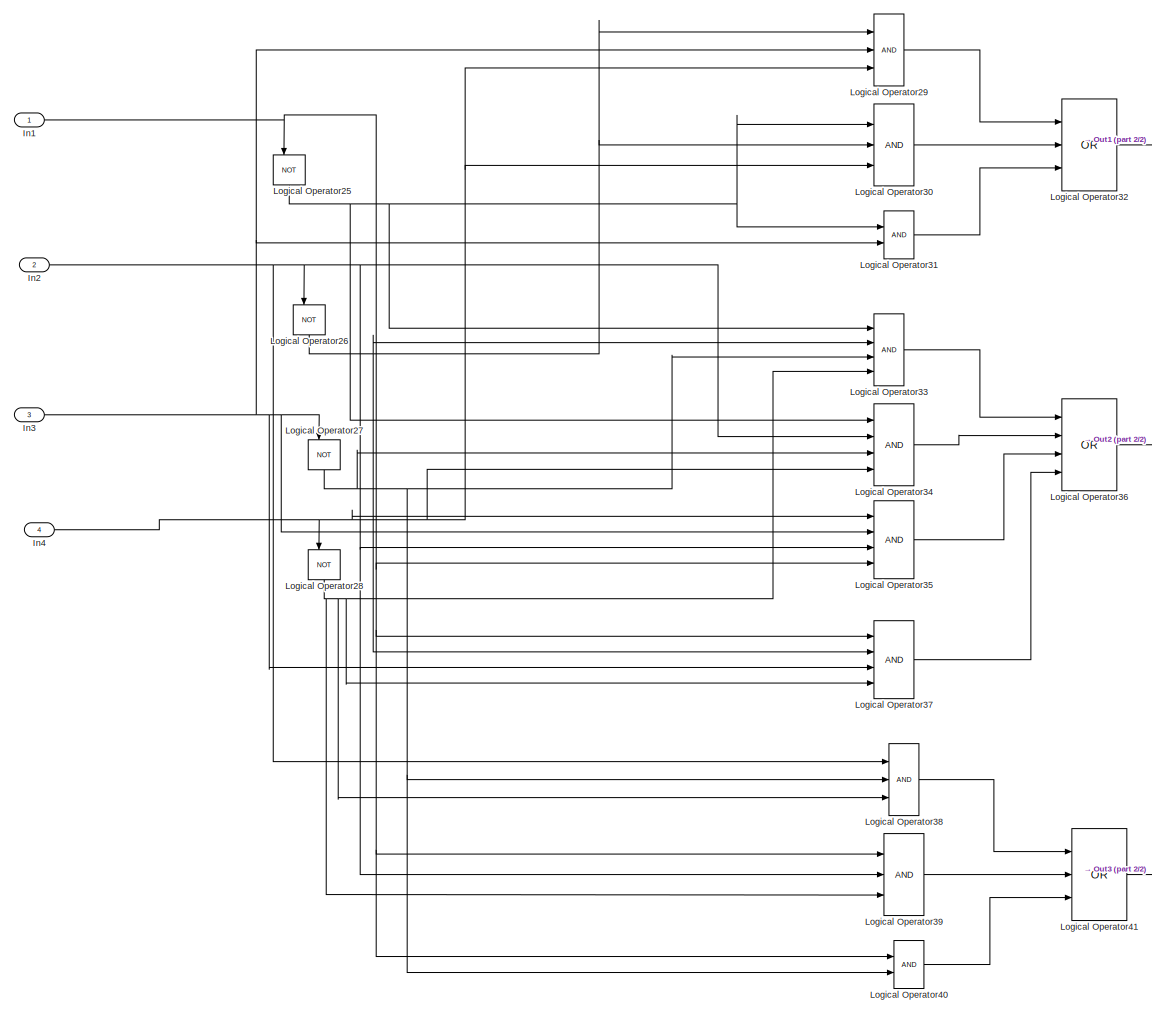
[diagram: XYZ - part 1/2, most of the canvas]
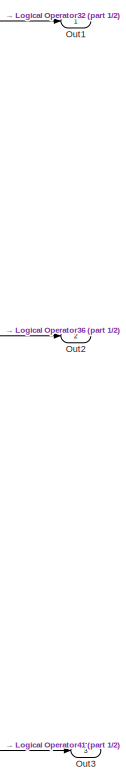
[diagram: XYZ - part 2/2, right side, full height]
BLOCK [SubSystem] XYZ
BLOCK [Inport] XYZ/In1
BLOCK [Inport] XYZ/In2
  Port = 2
BLOCK [Inport] XYZ/In3
  Port = 3
BLOCK [Inport] XYZ/In4
  Port = 4
BLOCK [Logic] XYZ/Logical Operator25
  AllPortsSameDT = off
  IconShape = distinctive
  NameLocation = left
  Operator = NOT
  OutDataTypeStr = boolean
BLOCK [Logic] XYZ/Logical Operator26
  AllPortsSameDT = off
  IconShape = distinctive
  NameLocation = left
  Operator = NOT
  OutDataTypeStr = boolean
BLOCK [Logic] XYZ/Logical Operator27
  AllPortsSameDT = off
  IconShape = distinctive
  NameLocation = left
  Operator = NOT
  OutDataTypeStr = boolean
BLOCK [Logic] XYZ/Logical Operator28
  AllPortsSameDT = off
  IconShape = distinctive
  NameLocation = left
  Operator = NOT
  OutDataTypeStr = boolean
BLOCK [Logic] XYZ/Logical Operator29
  AllPortsSameDT = off
  IconShape = distinctive
  Inputs = 3
  OutDataTypeStr = boolean
BLOCK [Logic] XYZ/Logical Operator30
  AllPortsSameDT = off
  IconShape = distinctive
  Inputs = 3
  OutDataTypeStr = boolean
BLOCK [Logic] XYZ/Logical Operator31
  AllPortsSameDT = off
  IconShape = distinctive
  OutDataTypeStr = boolean
BLOCK [Logic] XYZ/Logical Operator32
  AllPortsSameDT = off
  IconShape = distinctive
  Inputs = 3
  Operator = OR
  OutDataTypeStr = boolean
BLOCK [Logic] XYZ/Logical Operator33
  AllPortsSameDT = off
  IconShape = distinctive
  Inputs = 4
  OutDataTypeStr = boolean
BLOCK [Logic] XYZ/Logical Operator34
  AllPortsSameDT = off
  IconShape = distinctive
  Inputs = 4
  OutDataTypeStr = boolean
BLOCK [Logic] XYZ/Logical Operator35
  AllPortsSameDT = off
  IconShape = distinctive
  Inputs = 4
  OutDataTypeStr = boolean
BLOCK [Logic] XYZ/Logical Operator36
  AllPortsSameDT = off
  IconShape = distinctive
  Inputs = 4
  Operator = OR
  OutDataTypeStr = boolean
BLOCK [Logic] XYZ/Logical Operator37
  AllPortsSameDT = off
  IconShape = distinctive
  Inputs = 4
  OutDataTypeStr = boolean
BLOCK [Logic] XYZ/Logical Operator38
  AllPortsSameDT = off
  IconShape = distinctive
  Inputs = 3
  OutDataTypeStr = boolean
BLOCK [Logic] XYZ/Logical Operator39
  AllPortsSameDT = off
  IconShape = distinctive
  Inputs = 3
  OutDataTypeStr = boolean
BLOCK [Logic] XYZ/Logical Operator40
  AllPortsSameDT = off
  IconShape = distinctive
  OutDataTypeStr = boolean
BLOCK [Logic] XYZ/Logical Operator41
  AllPortsSameDT = off
  IconShape = distinctive
  Inputs = 3
  Operator = OR
  OutDataTypeStr = boolean
BLOCK [Outport] XYZ/Out1
BLOCK [Outport] XYZ/Out2
  Port = 2
BLOCK [Outport] XYZ/Out3
  Port = 3
ANNOTATION (root): [numd, dend]=bilinear([1],[1 1.414 1],1)
LINE 2:1MUX(Basic)/In1:1 -> 2:1MUX(Basic)/Logical Operator8:1
LINE 2:1MUX(Basic)/In2:1 -> 2:1MUX(Basic)/Logical Operator10:1
NET 2:1MUX(Basic)/In3:1 -> 2:1MUX(Basic)/Logical Operator10:2, 2:1MUX(Basic)/Logical Operator11:1
LINE 2:1MUX(Basic)/Logical Operator10:1 -> 2:1MUX(Basic)/Logical Operator9:2
LINE 2:1MUX(Basic)/Logical Operator11:1 -> 2:1MUX(Basic)/Logical Operator8:2
LINE 2:1MUX(Basic)/Logical Operator8:1 -> 2:1MUX(Basic)/Logical Operator9:1
LINE 2:1MUX(Basic)/Logical Operator9:1 -> 2:1MUX(Basic)/Out1:1
LINE 2:1MUX(Basic):1 -> Display28:1
LINE 2:1MUX(NAND)/In1:1 -> 2:1MUX(NAND)/Logical Operator9:2
LINE 2:1MUX(NAND)/In2:1 -> 2:1MUX(NAND)/Logical Operator10:1
NET 2:1MUX(NAND)/In3:1 -> 2:1MUX(NAND)/Logical Operator10:2, 2:1MUX(NAND)/Logical Operator8:1, 2:1MUX(NAND)/Logical Operator8:2
LINE 2:1MUX(NAND)/Logical Operator10:1 -> 2:1MUX(NAND)/Logical Operator11:2
LINE 2:1MUX(NAND)/Logical Operator11:1 -> 2:1MUX(NAND)/Out1:1
LINE 2:1MUX(NAND)/Logical Operator8:1 -> 2:1MUX(NAND)/Logical Operator9:1
LINE 2:1MUX(NAND)/Logical Operator9:1 -> 2:1MUX(NAND)/Logical Operator11:1
LINE 2:1MUX(NAND):1 -> Display29:1
LINE 3NOR USING 2NOR/In1:1 -> 3NOR USING 2NOR/Logical Operator5:1
LINE 3NOR USING 2NOR/In2:1 -> 3NOR USING 2NOR/Logical Operator5:2
LINE 3NOR USING 2NOR/In3:1 -> 3NOR USING 2NOR/Logical Operator2:2
LINE 3NOR USING 2NOR/Logical Operator1:1 -> 3NOR USING 2NOR/Logical Operator2:1
LINE 3NOR USING 2NOR/Logical Operator2:1 -> 3NOR USING 2NOR/Out1:1
NET 3NOR USING 2NOR/Logical Operator5:1 -> 3NOR USING 2NOR/Logical Operator1:1, 3NOR USING 2NOR/Logical Operator1:2
LINE 3NOR USING 2NOR:1 -> Display20:1
LINE 4:1MUX/2:1MUX(Basic)1/In1:1 -> 4:1MUX/2:1MUX(Basic)1/Logical Operator8:1
LINE 4:1MUX/2:1MUX(Basic)1/In2:1 -> 4:1MUX/2:1MUX(Basic)1/Logical Operator10:1
NET 4:1MUX/2:1MUX(Basic)1/In3:1 -> 4:1MUX/2:1MUX(Basic)1/Logical Operator10:2, 4:1MUX/2:1MUX(Basic)1/Logical Operator11:1
LINE 4:1MUX/2:1MUX(Basic)1/Logical Operator10:1 -> 4:1MUX/2:1MUX(Basic)1/Logical Operator9:2
LINE 4:1MUX/2:1MUX(Basic)1/Logical Operator11:1 -> 4:1MUX/2:1MUX(Basic)1/Logical Operator8:2
LINE 4:1MUX/2:1MUX(Basic)1/Logical Operator8:1 -> 4:1MUX/2:1MUX(Basic)1/Logical Operator9:1
LINE 4:1MUX/2:1MUX(Basic)1/Logical Operator9:1 -> 4:1MUX/2:1MUX(Basic)1/Out1:1
LINE 4:1MUX/2:1MUX(Basic)1:1 -> 4:1MUX/2:1MUX(Basic)3:1
LINE 4:1MUX/2:1MUX(Basic)2/In1:1 -> 4:1MUX/2:1MUX(Basic)2/Logical Operator8:1
LINE 4:1MUX/2:1MUX(Basic)2/In2:1 -> 4:1MUX/2:1MUX(Basic)2/Logical Operator10:1
NET 4:1MUX/2:1MUX(Basic)2/In3:1 -> 4:1MUX/2:1MUX(Basic)2/Logical Operator10:2, 4:1MUX/2:1MUX(Basic)2/Logical Operator11:1
LINE 4:1MUX/2:1MUX(Basic)2/Logical Operator10:1 -> 4:1MUX/2:1MUX(Basic)2/Logical Operator9:2
LINE 4:1MUX/2:1MUX(Basic)2/Logical Operator11:1 -> 4:1MUX/2:1MUX(Basic)2/Logical Operator8:2
LINE 4:1MUX/2:1MUX(Basic)2/Logical Operator8:1 -> 4:1MUX/2:1MUX(Basic)2/Logical Operator9:1
LINE 4:1MUX/2:1MUX(Basic)2/Logical Operator9:1 -> 4:1MUX/2:1MUX(Basic)2/Out1:1
LINE 4:1MUX/2:1MUX(Basic)2:1 -> 4:1MUX/2:1MUX(Basic)3:2
LINE 4:1MUX/2:1MUX(Basic)3/In1:1 -> 4:1MUX/2:1MUX(Basic)3/Logical Operator8:1
LINE 4:1MUX/2:1MUX(Basic)3/In2:1 -> 4:1MUX/2:1MUX(Basic)3/Logical Operator10:1
NET 4:1MUX/2:1MUX(Basic)3/In3:1 -> 4:1MUX/2:1MUX(Basic)3/Logical Operator10:2, 4:1MUX/2:1MUX(Basic)3/Logical Operator11:1
LINE 4:1MUX/2:1MUX(Basic)3/Logical Operator10:1 -> 4:1MUX/2:1MUX(Basic)3/Logical Operator9:2
LINE 4:1MUX/2:1MUX(Basic)3/Logical Operator11:1 -> 4:1MUX/2:1MUX(Basic)3/Logical Operator8:2
LINE 4:1MUX/2:1MUX(Basic)3/Logical Operator8:1 -> 4:1MUX/2:1MUX(Basic)3/Logical Operator9:1
LINE 4:1MUX/2:1MUX(Basic)3/Logical Operator9:1 -> 4:1MUX/2:1MUX(Basic)3/Out1:1
LINE 4:1MUX/2:1MUX(Basic)3:1 -> 4:1MUX/Out7:1
LINE 4:1MUX/In15:1 -> 4:1MUX/2:1MUX(Basic)1:1
LINE 4:1MUX/In16:1 -> 4:1MUX/2:1MUX(Basic)1:2
LINE 4:1MUX/In17:1 -> 4:1MUX/2:1MUX(Basic)2:1
LINE 4:1MUX/In18:1 -> 4:1MUX/2:1MUX(Basic)2:2
LINE 4:1MUX/In19:1 -> 4:1MUX/Manual Switch2:1
LINE 4:1MUX/In20:1 -> 4:1MUX/Manual Switch2:2
LINE 4:1MUX/In21:1 -> 4:1MUX/Manual Switch3:1
LINE 4:1MUX/In22:1 -> 4:1MUX/Manual Switch3:2
NET 4:1MUX/Manual Switch2:1 -> 4:1MUX/2:1MUX(Basic)1:3, 4:1MUX/2:1MUX(Basic)2:3
LINE 4:1MUX/Manual Switch3:1 -> 4:1MUX/2:1MUX(Basic)3:3
LINE 4:1MUX:1 -> Display30:1
LINE 4BIT(2:1)MUXNAND/In10:1 -> 4BIT(2:1)MUXNAND/Logical Operator13:2
LINE 4BIT(2:1)MUXNAND/In12:1 -> 4BIT(2:1)MUXNAND/Logical Operator15:1
LINE 4BIT(2:1)MUXNAND/In1:1 -> 4BIT(2:1)MUXNAND/Logical Operator5:2
NET 4BIT(2:1)MUXNAND/In2:1 -> 4BIT(2:1)MUXNAND/Logical Operator11:2, 4BIT(2:1)MUXNAND/Logical Operator12:1, 4BIT(2:1)MUXNAND/Logical Operator12:2, 4BIT(2:1)MUXNAND/Logical Operator15:2, 4BIT(2:1)MUXNAND/Logical Operator3:2, 4BIT(2:1)MUXNAND/Logical Operator4:1, 4BIT(2:1)MUXNAND/Logical Operator4:2, 4BIT(2:1)MUXNAND/Logical Operator7:2, 4BIT(2:1)MUXNAND/Logical Operator8:1, 4BIT(2:1)MUXNAND/Logical Operator8:2, 4BIT(2:1)MUXNAND/Logical Operator:1, 4BIT(2:1)MUXNAND/Logical Operator:2
LINE 4BIT(2:1)MUXNAND/In3:1 -> 4BIT(2:1)MUXNAND/Logical Operator7:1
LINE 4BIT(2:1)MUXNAND/In4:1 -> 4BIT(2:1)MUXNAND/Logical Operator1:2
LINE 4BIT(2:1)MUXNAND/In6:1 -> 4BIT(2:1)MUXNAND/Logical Operator3:1
LINE 4BIT(2:1)MUXNAND/In7:1 -> 4BIT(2:1)MUXNAND/Logical Operator9:2
LINE 4BIT(2:1)MUXNAND/In9:1 -> 4BIT(2:1)MUXNAND/Logical Operator11:1
LINE 4BIT(2:1)MUXNAND/Logical Operator10:1 -> 4BIT(2:1)MUXNAND/Out3:1
LINE 4BIT(2:1)MUXNAND/Logical Operator11:1 -> 4BIT(2:1)MUXNAND/Logical Operator10:2
LINE 4BIT(2:1)MUXNAND/Logical Operator12:1 -> 4BIT(2:1)MUXNAND/Logical Operator13:1
LINE 4BIT(2:1)MUXNAND/Logical Operator13:1 -> 4BIT(2:1)MUXNAND/Logical Operator14:1
LINE 4BIT(2:1)MUXNAND/Logical Operator14:1 -> 4BIT(2:1)MUXNAND/Out4:1
LINE 4BIT(2:1)MUXNAND/Logical Operator15:1 -> 4BIT(2:1)MUXNAND/Logical Operator14:2
LINE 4BIT(2:1)MUXNAND/Logical Operator1:1 -> 4BIT(2:1)MUXNAND/Logical Operator2:1
LINE 4BIT(2:1)MUXNAND/Logical Operator2:1 -> 4BIT(2:1)MUXNAND/Out2:1
LINE 4BIT(2:1)MUXNAND/Logical Operator3:1 -> 4BIT(2:1)MUXNAND/Logical Operator2:2
LINE 4BIT(2:1)MUXNAND/Logical Operator4:1 -> 4BIT(2:1)MUXNAND/Logical Operator5:1
LINE 4BIT(2:1)MUXNAND/Logical Operator5:1 -> 4BIT(2:1)MUXNAND/Logical Operator6:1
LINE 4BIT(2:1)MUXNAND/Logical Operator6:1 -> 4BIT(2:1)MUXNAND/Out1:1
LINE 4BIT(2:1)MUXNAND/Logical Operator7:1 -> 4BIT(2:1)MUXNAND/Logical Operator6:2
LINE 4BIT(2:1)MUXNAND/Logical Operator8:1 -> 4BIT(2:1)MUXNAND/Logical Operator9:1
LINE 4BIT(2:1)MUXNAND/Logical Operator9:1 -> 4BIT(2:1)MUXNAND/Logical Operator10:1
LINE 4BIT(2:1)MUXNAND/Logical Operator:1 -> 4BIT(2:1)MUXNAND/Logical Operator1:1
LINE 4BIT(2:1)MUXNAND:1 -> Out3:1
LINE 4BIT(2:1)MUXNAND:2 -> Out4:1
LINE 4BIT(2:1)MUXNAND:3 -> Out5:1
LINE 4BIT(2:1)MUXNAND:4 -> Out6:1
LINE A+B+C/In1:1 -> A+B+C/Logical Operator3:1
LINE A+B+C/In2:1 -> A+B+C/Logical Operator3:2
LINE A+B+C/In3:1 -> A+B+C/Logical Operator7:2
NET A+B+C/Logical Operator3:1 -> A+B+C/Logical Operator6:1, A+B+C/Logical Operator6:2
LINE A+B+C/Logical Operator6:1 -> A+B+C/Logical Operator7:1
NET A+B+C/Logical Operator7:1 -> A+B+C/Logical Operator8:1, A+B+C/Logical Operator8:2
LINE A+B+C/Logical Operator8:1 -> A+B+C/Out1:1
LINE A+B+C:1 -> Display19:1
LINE ABC/In1:1 -> ABC/Logical Operator3:1
LINE ABC/In2:1 -> ABC/Logical Operator3:2
LINE ABC/In3:1 -> ABC/Logical Operator2:2
LINE ABC/Logical Operator1:1 -> ABC/Logical Operator2:1
NET ABC/Logical Operator2:1 -> ABC/Logical Operator4:1, ABC/Logical Operator4:2
NET ABC/Logical Operator3:1 -> ABC/Logical Operator1:1, ABC/Logical Operator1:2
LINE ABC/Logical Operator4:1 -> ABC/Out1:1
LINE ABC:1 -> Display18:1
NET AC+B/In1:1 -> AC+B/Logical Operator2:1, AC+B/Logical Operator3:1
NET AC+B/In2:1 -> AC+B/Logical Operator4:1, AC+B/Logical Operator6:1, AC+B/Logical Operator6:2
NET AC+B/In3:1 -> AC+B/Logical Operator2:2, AC+B/Logical Operator3:2
LINE AC+B/Logical Operator1:1 -> AC+B/Out1:1
LINE AC+B/Logical Operator2:1 -> AC+B/Logical Operator4:2
LINE AC+B/Logical Operator3:1 -> AC+B/Logical Operator1:1
LINE AC+B/Logical Operator4:1 -> AC+B/Out2:1
LINE AC+B/Logical Operator6:1 -> AC+B/Logical Operator1:2
LINE AC+B:1 -> Display17:1
LINE AC+B:2 -> Display16:1
NET Absorption/Constant14:1 -> Absorption/Display14:1, Absorption/Logical Operator2:1, Absorption/Logical Operator4:1
LINE Absorption/Constant15:1 -> Absorption/Logical Operator4:2
LINE Absorption/Logical Operator2:1 -> Absorption/Display15:1
LINE Absorption/Logical Operator4:1 -> Absorption/Logical Operator2:2
LINE Add:1 -> Scope1:1
NET BASIC GATES/In1:1 -> BASIC GATES/Logical Operator1:1, BASIC GATES/Logical Operator2:1, BASIC GATES/Logical Operator3:1, BASIC GATES/Logical Operator4:1, BASIC GATES/Logical Operator5:1, BASIC GATES/Logical Operator6:1, BASIC GATES/Logical Operator7:1
NET BASIC GATES/In2:1 -> BASIC GATES/Logical Operator1:2, BASIC GATES/Logical Operator2:2, BASIC GATES/Logical Operator3:2, BASIC GATES/Logical Operator4:2, BASIC GATES/Logical Operator5:2, BASIC GATES/Logical Operator6:2
LINE BASIC GATES/Logical Operator1:1 -> BASIC GATES/Out1:1
LINE BASIC GATES/Logical Operator2:1 -> BASIC GATES/Out2:1
LINE BASIC GATES/Logical Operator3:1 -> BASIC GATES/Out3:1
LINE BASIC GATES/Logical Operator4:1 -> BASIC GATES/Out4:1
LINE BASIC GATES/Logical Operator5:1 -> BASIC GATES/Out5:1
LINE BASIC GATES/Logical Operator6:1 -> BASIC GATES/Out6:1
LINE BASIC GATES/Logical Operator7:1 -> BASIC GATES/Out7:1
LINE BASIC GATES:1 -> Display1:1
LINE BASIC GATES:2 -> Display2:1
LINE BASIC GATES:3 -> Display3:1
LINE BASIC GATES:4 -> Display4:1
LINE BASIC GATES:5 -> Display5:1
LINE BASIC GATES:6 -> Display6:1
LINE BASIC GATES:7 -> Display7:1
LINE Bus Creator1:1 -> Scope2:1
LINE Bus Creator2:1 -> Scope3:1
LINE Bus Creator3:1 -> Scope4:1
LINE Bus Creator4:1 -> Scope8:1
LINE Bus Creator:1 -> Scope:1
LINE Constant10:1 -> XOR_NOR:1
LINE Constant11:1 -> XOR_NOR:2
LINE Constant12:1 -> DeMorgan:1
LINE Constant13:1 -> DeMorgan:2
LINE Constant14:1 -> Distributive:1
LINE Constant15:1 -> Distributive:2
LINE Constant16:1 -> Distributive:3
LINE Constant17:1 -> AC+B:1
LINE Constant18:1 -> AC+B:2
LINE Constant19:1 -> AC+B:3
NET Constant1:1 -> Manual Switch1:2, Manual Switch:2
LINE Constant20:1 -> ABC:1
LINE Constant21:1 -> ABC:2
LINE Constant22:1 -> ABC:3
LINE Constant23:1 -> A+B+C:1
LINE Constant24:1 -> A+B+C:2
LINE Constant25:1 -> A+B+C:3
LINE Constant26:1 -> 3NOR USING 2NOR:1
LINE Constant27:1 -> 3NOR USING 2NOR:2
LINE Constant28:1 -> 3NOR USING 2NOR:3
LINE Constant29:1 -> X(Y+Z)+XY:1
LINE Constant2:1 -> BASIC GATES:1
LINE Constant30:1 -> X(Y+Z)+XY:2
LINE Constant31:1 -> X(Y+Z)+XY:3
LINE Constant32:1 -> HA_Basic:1
LINE Constant33:1 -> HA_Basic:2
LINE Constant34:1 -> Halfadder_NAND:1
LINE Constant35:1 -> Halfadder_NAND:2
LINE Constant36:1 -> FULLADDER_BASIC:1
LINE Constant37:1 -> FULLADDER_BASIC:2
LINE Constant38:1 -> FULLADDER_BASIC:3
LINE Constant39:1 -> Saturation Dynamic:1
LINE Constant3:1 -> BASIC GATES:2
LINE Constant40:1 -> Saturation Dynamic:3
LINE Constant41:1 -> Saturation Dynamic1:1
LINE Constant42:1 -> Saturation Dynamic1:3
LINE Constant43:1 -> 2:1MUX(Basic):1
LINE Constant44:1 -> 2:1MUX(Basic):2
LINE Constant45:1 -> 2:1MUX(Basic):3
LINE Constant46:1 -> 2:1MUX(NAND):1
LINE Constant47:1 -> 2:1MUX(NAND):2
LINE Constant48:1 -> 2:1MUX(NAND):3
LINE Constant49:1 -> 4:1MUX:1
LINE Constant4:1 -> XOR_basic:1
LINE Constant50:1 -> 4:1MUX:2
LINE Constant51:1 -> 4:1MUX:3
LINE Constant52:1 -> 4:1MUX:4
LINE Constant53:1 -> 4:1MUX:5
LINE Constant54:1 -> 4:1MUX:6
LINE Constant55:1 -> 4:1MUX:7
LINE Constant56:1 -> 4:1MUX:8
NET Constant57:1 -> Logical Operator15:1, Logical Operator24:1
NET Constant58:1 -> Logical Operator16:1, Logical Operator17:1, Logical Operator23:1
NET Constant59:1 -> Logical Operator17:2, Logical Operator18:2, Logical Operator22:1
LINE Constant5:1 -> XOR_basic:2
NET Constant60:1 -> Logical Operator17:3, Logical Operator19:4, Logical Operator21:1
LINE Constant61:1 -> XYZ:1
LINE Constant62:1 -> XYZ:2
LINE Constant63:1 -> XYZ:3
LINE Constant64:1 -> XYZ:4
LINE Constant6:1 -> XOR_Nand:1
LINE Constant7:1 -> XOR_Nand:2
LINE Constant8:1 -> XNOR_NOR:1
LINE Constant9:1 -> XNOR_NOR:2
NET Constant:1 -> Manual Switch1:1, Manual Switch:1
NET DeMorgan/In1:1 -> DeMorgan/Logical Operator1:1, DeMorgan/Logical Operator4:1
NET DeMorgan/In2:1 -> DeMorgan/Logical Operator3:1, DeMorgan/Logical Operator4:2
LINE DeMorgan/Logical Operator1:1 -> DeMorgan/Logical Operator2:2
LINE DeMorgan/Logical Operator2:1 -> DeMorgan/Out2:1
LINE DeMorgan/Logical Operator3:1 -> DeMorgan/Logical Operator2:1
LINE DeMorgan/Logical Operator4:1 -> DeMorgan/Logical Operator5:1
LINE DeMorgan/Logical Operator5:1 -> DeMorgan/Out1:1
LINE DeMorgan:1 -> Display12:1
LINE DeMorgan:2 -> Display13:1
LINE Deadzone:1 -> Bus Creator3:2
LINE Discrete Transfer Fcn1:1 -> Scope6:1
LINE Discrete Transfer Fcn:1 -> Scope5:1
LINE Discrete Zero-Pole:1 -> Scope7:1
NET Distributive/In1:1 -> Distributive/Logical Operator1:1, Distributive/Logical Operator3:1, Distributive/Logical Operator4:1
NET Distributive/In2:1 -> Distributive/Logical Operator2:1, Distributive/Logical Operator3:2
NET Distributive/In3:1 -> Distributive/Logical Operator1:2, Distributive/Logical Operator2:2
LINE Distributive/Logical Operator1:1 -> Distributive/Logical Operator5:2
LINE Distributive/Logical Operator2:1 -> Distributive/Logical Operator4:2
LINE Distributive/Logical Operator3:1 -> Distributive/Logical Operator5:1
LINE Distributive/Logical Operator4:1 -> Distributive/Out2:1
LINE Distributive/Logical Operator5:1 -> Distributive/Out1:1
LINE Distributive:1 -> Display15:1
LINE Distributive:2 -> Display14:1
LINE Double Clip:1 -> Bus Creator:2
NET FULLADDER_BASIC/HA_Basic1/In1:1 -> FULLADDER_BASIC/HA_Basic1/Logical Operator2:1, FULLADDER_BASIC/HA_Basic1/XOR_basic1:1
NET FULLADDER_BASIC/HA_Basic1/In2:1 -> FULLADDER_BASIC/HA_Basic1/Logical Operator2:2, FULLADDER_BASIC/HA_Basic1/XOR_basic1:2
LINE FULLADDER_BASIC/HA_Basic1/Logical Operator2:1 -> FULLADDER_BASIC/HA_Basic1/Out2:1
NET FULLADDER_BASIC/HA_Basic1/XOR_basic1/In1:1 -> FULLADDER_BASIC/HA_Basic1/XOR_basic1/Logical Operator1:1, FULLADDER_BASIC/HA_Basic1/XOR_basic1/Logical Operator3:1
NET FULLADDER_BASIC/HA_Basic1/XOR_basic1/In2:1 -> FULLADDER_BASIC/HA_Basic1/XOR_basic1/Logical Operator2:2, FULLADDER_BASIC/HA_Basic1/XOR_basic1/Logical Operator5:1
LINE FULLADDER_BASIC/HA_Basic1/XOR_basic1/Logical Operator1:1 -> FULLADDER_BASIC/HA_Basic1/XOR_basic1/Logical Operator4:2
LINE FULLADDER_BASIC/HA_Basic1/XOR_basic1/Logical Operator2:1 -> FULLADDER_BASIC/HA_Basic1/XOR_basic1/Logical Operator4:1
LINE FULLADDER_BASIC/HA_Basic1/XOR_basic1/Logical Operator3:1 -> FULLADDER_BASIC/HA_Basic1/XOR_basic1/Logical Operator2:1
LINE FULLADDER_BASIC/HA_Basic1/XOR_basic1/Logical Operator4:1 -> FULLADDER_BASIC/HA_Basic1/XOR_basic1/Out1:1
LINE FULLADDER_BASIC/HA_Basic1/XOR_basic1/Logical Operator5:1 -> FULLADDER_BASIC/HA_Basic1/XOR_basic1/Logical Operator1:2
LINE FULLADDER_BASIC/HA_Basic1/XOR_basic1:1 -> FULLADDER_BASIC/HA_Basic1/Out1:1
LINE FULLADDER_BASIC/HA_Basic1:1 -> FULLADDER_BASIC/HA_Basic2:1
LINE FULLADDER_BASIC/HA_Basic1:2 -> FULLADDER_BASIC/Logical Operator4:2
NET FULLADDER_BASIC/HA_Basic2/In1:1 -> FULLADDER_BASIC/HA_Basic2/Logical Operator2:1, FULLADDER_BASIC/HA_Basic2/XOR_basic1:1
NET FULLADDER_BASIC/HA_Basic2/In2:1 -> FULLADDER_BASIC/HA_Basic2/Logical Operator2:2, FULLADDER_BASIC/HA_Basic2/XOR_basic1:2
LINE FULLADDER_BASIC/HA_Basic2/Logical Operator2:1 -> FULLADDER_BASIC/HA_Basic2/Out2:1
NET FULLADDER_BASIC/HA_Basic2/XOR_basic1/In1:1 -> FULLADDER_BASIC/HA_Basic2/XOR_basic1/Logical Operator1:1, FULLADDER_BASIC/HA_Basic2/XOR_basic1/Logical Operator3:1
NET FULLADDER_BASIC/HA_Basic2/XOR_basic1/In2:1 -> FULLADDER_BASIC/HA_Basic2/XOR_basic1/Logical Operator2:2, FULLADDER_BASIC/HA_Basic2/XOR_basic1/Logical Operator5:1
LINE FULLADDER_BASIC/HA_Basic2/XOR_basic1/Logical Operator1:1 -> FULLADDER_BASIC/HA_Basic2/XOR_basic1/Logical Operator4:2
LINE FULLADDER_BASIC/HA_Basic2/XOR_basic1/Logical Operator2:1 -> FULLADDER_BASIC/HA_Basic2/XOR_basic1/Logical Operator4:1
LINE FULLADDER_BASIC/HA_Basic2/XOR_basic1/Logical Operator3:1 -> FULLADDER_BASIC/HA_Basic2/XOR_basic1/Logical Operator2:1
LINE FULLADDER_BASIC/HA_Basic2/XOR_basic1/Logical Operator4:1 -> FULLADDER_BASIC/HA_Basic2/XOR_basic1/Out1:1
LINE FULLADDER_BASIC/HA_Basic2/XOR_basic1/Logical Operator5:1 -> FULLADDER_BASIC/HA_Basic2/XOR_basic1/Logical Operator1:2
LINE FULLADDER_BASIC/HA_Basic2/XOR_basic1:1 -> FULLADDER_BASIC/HA_Basic2/Out1:1
LINE FULLADDER_BASIC/HA_Basic2:1 -> FULLADDER_BASIC/Out1:1
LINE FULLADDER_BASIC/HA_Basic2:2 -> FULLADDER_BASIC/Logical Operator4:1
LINE FULLADDER_BASIC/In1:1 -> FULLADDER_BASIC/HA_Basic1:1
LINE FULLADDER_BASIC/In2:1 -> FULLADDER_BASIC/HA_Basic1:2
LINE FULLADDER_BASIC/In3:1 -> FULLADDER_BASIC/HA_Basic2:2
LINE FULLADDER_BASIC/Logical Operator4:1 -> FULLADDER_BASIC/Out2:1
LINE FULLADDER_BASIC:1 -> Display27:1
LINE FULLADDER_BASIC:2 -> Display26:1
LINE Fullwave rectifier/Add:1 -> Fullwave rectifier/Scope1:1
LINE Fullwave rectifier/Constant39:1 -> Fullwave rectifier/Saturation Dynamic:1
LINE Fullwave rectifier/Constant40:1 -> Fullwave rectifier/Saturation Dynamic:3
LINE Fullwave rectifier/Constant41:1 -> Fullwave rectifier/Saturation Dynamic1:1
LINE Fullwave rectifier/Constant42:1 -> Fullwave rectifier/Saturation Dynamic1:3
LINE Fullwave rectifier/Gain:1 -> Fullwave rectifier/Add:2
LINE Fullwave rectifier/Saturation Dynamic1:1 -> Fullwave rectifier/Gain:1
LINE Fullwave rectifier/Saturation Dynamic:1 -> Fullwave rectifier/Add:1
NET Fullwave rectifier/Signal Generator1:1 -> Fullwave rectifier/Saturation Dynamic1:2, Fullwave rectifier/Saturation Dynamic:2
NET HA_Basic/In1:1 -> HA_Basic/Logical Operator2:1, HA_Basic/XOR_basic1:1
NET HA_Basic/In2:1 -> HA_Basic/Logical Operator2:2, HA_Basic/XOR_basic1:2
LINE HA_Basic/Logical Operator2:1 -> HA_Basic/Out2:1
NET HA_Basic/XOR_basic1/In1:1 -> HA_Basic/XOR_basic1/Logical Operator1:1, HA_Basic/XOR_basic1/Logical Operator3:1
NET HA_Basic/XOR_basic1/In2:1 -> HA_Basic/XOR_basic1/Logical Operator2:2, HA_Basic/XOR_basic1/Logical Operator5:1
LINE HA_Basic/XOR_basic1/Logical Operator1:1 -> HA_Basic/XOR_basic1/Logical Operator4:2
LINE HA_Basic/XOR_basic1/Logical Operator2:1 -> HA_Basic/XOR_basic1/Logical Operator4:1
LINE HA_Basic/XOR_basic1/Logical Operator3:1 -> HA_Basic/XOR_basic1/Logical Operator2:1
LINE HA_Basic/XOR_basic1/Logical Operator4:1 -> HA_Basic/XOR_basic1/Out1:1
LINE HA_Basic/XOR_basic1/Logical Operator5:1 -> HA_Basic/XOR_basic1/Logical Operator1:2
LINE HA_Basic/XOR_basic1:1 -> HA_Basic/Out1:1
LINE HA_Basic:1 -> Display22:1
LINE HA_Basic:2 -> Display23:1
NET HalfAdder_PulseIP/Halfadder_NAND1/In1:1 -> HalfAdder_PulseIP/Halfadder_NAND1/Logical Operator3:1, HalfAdder_PulseIP/Halfadder_NAND1/XOR_Nand1:1
NET HalfAdder_PulseIP/Halfadder_NAND1/In2:1 -> HalfAdder_PulseIP/Halfadder_NAND1/Logical Operator3:2, HalfAdder_PulseIP/Halfadder_NAND1/XOR_Nand1:2
LINE HalfAdder_PulseIP/Halfadder_NAND1/Logical Operator1:1 -> HalfAdder_PulseIP/Halfadder_NAND1/Out2:1
NET HalfAdder_PulseIP/Halfadder_NAND1/Logical Operator3:1 -> HalfAdder_PulseIP/Halfadder_NAND1/Logical Operator1:1, HalfAdder_PulseIP/Halfadder_NAND1/Logical Operator1:2
NET HalfAdder_PulseIP/Halfadder_NAND1/XOR_Nand1/In1:1 -> HalfAdder_PulseIP/Halfadder_NAND1/XOR_Nand1/Logical Operator1:1, HalfAdder_PulseIP/Halfadder_NAND1/XOR_Nand1/Logical Operator3:1
NET HalfAdder_PulseIP/Halfadder_NAND1/XOR_Nand1/In2:1 -> HalfAdder_PulseIP/Halfadder_NAND1/XOR_Nand1/Logical Operator2:2, HalfAdder_PulseIP/Halfadder_NAND1/XOR_Nand1/Logical Operator3:2
LINE HalfAdder_PulseIP/Halfadder_NAND1/XOR_Nand1/Logical Operator1:1 -> HalfAdder_PulseIP/Halfadder_NAND1/XOR_Nand1/Logical Operator4:1
LINE HalfAdder_PulseIP/Halfadder_NAND1/XOR_Nand1/Logical Operator2:1 -> HalfAdder_PulseIP/Halfadder_NAND1/XOR_Nand1/Logical Operator4:2
NET HalfAdder_PulseIP/Halfadder_NAND1/XOR_Nand1/Logical Operator3:1 -> HalfAdder_PulseIP/Halfadder_NAND1/XOR_Nand1/Logical Operator1:2, HalfAdder_PulseIP/Halfadder_NAND1/XOR_Nand1/Logical Operator2:1
LINE HalfAdder_PulseIP/Halfadder_NAND1/XOR_Nand1/Logical Operator4:1 -> HalfAdder_PulseIP/Halfadder_NAND1/XOR_Nand1/Out1:1
LINE HalfAdder_PulseIP/Halfadder_NAND1/XOR_Nand1:1 -> HalfAdder_PulseIP/Halfadder_NAND1/Out1:1
LINE HalfAdder_PulseIP/Halfadder_NAND1:1 -> HalfAdder_PulseIP/Scope5:3
LINE HalfAdder_PulseIP/Halfadder_NAND1:2 -> HalfAdder_PulseIP/Scope5:4
NET HalfAdder_PulseIP/Pulse Generator1:1 -> HalfAdder_PulseIP/Halfadder_NAND1:2, HalfAdder_PulseIP/Scope5:2
NET HalfAdder_PulseIP/Pulse Generator:1 -> HalfAdder_PulseIP/Halfadder_NAND1:1, HalfAdder_PulseIP/Scope5:1
NET Halfadder_NAND/In1:1 -> Halfadder_NAND/Logical Operator3:1, Halfadder_NAND/XOR_Nand1:1
NET Halfadder_NAND/In2:1 -> Halfadder_NAND/Logical Operator3:2, Halfadder_NAND/XOR_Nand1:2
LINE Halfadder_NAND/Logical Operator1:1 -> Halfadder_NAND/Out2:1
NET Halfadder_NAND/Logical Operator3:1 -> Halfadder_NAND/Logical Operator1:1, Halfadder_NAND/Logical Operator1:2
NET Halfadder_NAND/XOR_Nand1/In1:1 -> Halfadder_NAND/XOR_Nand1/Logical Operator1:1, Halfadder_NAND/XOR_Nand1/Logical Operator3:1
NET Halfadder_NAND/XOR_Nand1/In2:1 -> Halfadder_NAND/XOR_Nand1/Logical Operator2:2, Halfadder_NAND/XOR_Nand1/Logical Operator3:2
LINE Halfadder_NAND/XOR_Nand1/Logical Operator1:1 -> Halfadder_NAND/XOR_Nand1/Logical Operator4:1
LINE Halfadder_NAND/XOR_Nand1/Logical Operator2:1 -> Halfadder_NAND/XOR_Nand1/Logical Operator4:2
NET Halfadder_NAND/XOR_Nand1/Logical Operator3:1 -> Halfadder_NAND/XOR_Nand1/Logical Operator1:2, Halfadder_NAND/XOR_Nand1/Logical Operator2:1
LINE Halfadder_NAND/XOR_Nand1/Logical Operator4:1 -> Halfadder_NAND/XOR_Nand1/Out1:1
LINE Halfadder_NAND/XOR_Nand1:1 -> Halfadder_NAND/Out1:1
LINE Halfadder_NAND:1 -> Display24:1
LINE Halfadder_NAND:2 -> Display25:1
LINE HalfwaveRectifier/Constant39:1 -> HalfwaveRectifier/Saturation Dynamic:1
LINE HalfwaveRectifier/Constant40:1 -> HalfwaveRectifier/Saturation Dynamic:3
LINE HalfwaveRectifier/Saturation Dynamic:1 -> HalfwaveRectifier/Scope1:2
NET HalfwaveRectifier/Signal Generator1:1 -> HalfwaveRectifier/Saturation Dynamic:2, HalfwaveRectifier/Scope1:1
LINE In10:1 -> 4BIT(2:1)MUXNAND:4
LINE In11:1 -> 4BIT(2:1)MUXNAND:6
LINE In12:1 -> 4BIT(2:1)MUXNAND:7
LINE In13:1 -> 4BIT(2:1)MUXNAND:8
LINE In14:1 -> 4BIT(2:1)MUXNAND:9
LINE In1:1 -> Logical Operator8:1
LINE In2:1 -> Logical Operator9:1
LINE In3:1 -> Logical Operator12:1
LINE In4:1 -> Logical Operator13:1
NET In5:1 -> Logical Operator13:2, Logical Operator14:1, Logical Operator9:2
LINE In6:1 -> 4BIT(2:1)MUXNAND:1
LINE In7:1 -> 4BIT(2:1)MUXNAND:2
LINE In8:1 -> 4BIT(2:1)MUXNAND:3
LINE In9:1 -> 4BIT(2:1)MUXNAND:5
LINE Inrementer/Constant39:1 -> Inrementer/Halfadder_NAND4:1
LINE Inrementer/Constant40:1 -> Inrementer/Halfadder_NAND3:1
LINE Inrementer/Constant41:1 -> Inrementer/Halfadder_NAND2:1
LINE Inrementer/Constant42:1 -> Inrementer/Halfadder_NAND1:1
LINE Inrementer/Constant43:1 -> Inrementer/Halfadder_NAND1:2
NET Inrementer/Halfadder_NAND1/In1:1 -> Inrementer/Halfadder_NAND1/Logical Operator3:1, Inrementer/Halfadder_NAND1/XOR_Nand1:1
NET Inrementer/Halfadder_NAND1/In2:1 -> Inrementer/Halfadder_NAND1/Logical Operator3:2, Inrementer/Halfadder_NAND1/XOR_Nand1:2
LINE Inrementer/Halfadder_NAND1/Logical Operator1:1 -> Inrementer/Halfadder_NAND1/Out2:1
NET Inrementer/Halfadder_NAND1/Logical Operator3:1 -> Inrementer/Halfadder_NAND1/Logical Operator1:1, Inrementer/Halfadder_NAND1/Logical Operator1:2
NET Inrementer/Halfadder_NAND1/XOR_Nand1/In1:1 -> Inrementer/Halfadder_NAND1/XOR_Nand1/Logical Operator1:1, Inrementer/Halfadder_NAND1/XOR_Nand1/Logical Operator3:1
NET Inrementer/Halfadder_NAND1/XOR_Nand1/In2:1 -> Inrementer/Halfadder_NAND1/XOR_Nand1/Logical Operator2:2, Inrementer/Halfadder_NAND1/XOR_Nand1/Logical Operator3:2
LINE Inrementer/Halfadder_NAND1/XOR_Nand1/Logical Operator1:1 -> Inrementer/Halfadder_NAND1/XOR_Nand1/Logical Operator4:1
LINE Inrementer/Halfadder_NAND1/XOR_Nand1/Logical Operator2:1 -> Inrementer/Halfadder_NAND1/XOR_Nand1/Logical Operator4:2
NET Inrementer/Halfadder_NAND1/XOR_Nand1/Logical Operator3:1 -> Inrementer/Halfadder_NAND1/XOR_Nand1/Logical Operator1:2, Inrementer/Halfadder_NAND1/XOR_Nand1/Logical Operator2:1
LINE Inrementer/Halfadder_NAND1/XOR_Nand1/Logical Operator4:1 -> Inrementer/Halfadder_NAND1/XOR_Nand1/Out1:1
LINE Inrementer/Halfadder_NAND1/XOR_Nand1:1 -> Inrementer/Halfadder_NAND1/Out1:1
LINE Inrementer/Halfadder_NAND1:1 -> Inrementer/Display28:1
LINE Inrementer/Halfadder_NAND1:2 -> Inrementer/Halfadder_NAND2:2
NET Inrementer/Halfadder_NAND2/In1:1 -> Inrementer/Halfadder_NAND2/Logical Operator3:1, Inrementer/Halfadder_NAND2/XOR_Nand1:1
NET Inrementer/Halfadder_NAND2/In2:1 -> Inrementer/Halfadder_NAND2/Logical Operator3:2, Inrementer/Halfadder_NAND2/XOR_Nand1:2
LINE Inrementer/Halfadder_NAND2/Logical Operator1:1 -> Inrementer/Halfadder_NAND2/Out2:1
NET Inrementer/Halfadder_NAND2/Logical Operator3:1 -> Inrementer/Halfadder_NAND2/Logical Operator1:1, Inrementer/Halfadder_NAND2/Logical Operator1:2
NET Inrementer/Halfadder_NAND2/XOR_Nand1/In1:1 -> Inrementer/Halfadder_NAND2/XOR_Nand1/Logical Operator1:1, Inrementer/Halfadder_NAND2/XOR_Nand1/Logical Operator3:1
NET Inrementer/Halfadder_NAND2/XOR_Nand1/In2:1 -> Inrementer/Halfadder_NAND2/XOR_Nand1/Logical Operator2:2, Inrementer/Halfadder_NAND2/XOR_Nand1/Logical Operator3:2
LINE Inrementer/Halfadder_NAND2/XOR_Nand1/Logical Operator1:1 -> Inrementer/Halfadder_NAND2/XOR_Nand1/Logical Operator4:1
LINE Inrementer/Halfadder_NAND2/XOR_Nand1/Logical Operator2:1 -> Inrementer/Halfadder_NAND2/XOR_Nand1/Logical Operator4:2
NET Inrementer/Halfadder_NAND2/XOR_Nand1/Logical Operator3:1 -> Inrementer/Halfadder_NAND2/XOR_Nand1/Logical Operator1:2, Inrementer/Halfadder_NAND2/XOR_Nand1/Logical Operator2:1
LINE Inrementer/Halfadder_NAND2/XOR_Nand1/Logical Operator4:1 -> Inrementer/Halfadder_NAND2/XOR_Nand1/Out1:1
LINE Inrementer/Halfadder_NAND2/XOR_Nand1:1 -> Inrementer/Halfadder_NAND2/Out1:1
LINE Inrementer/Halfadder_NAND2:1 -> Inrementer/Display29:1
LINE Inrementer/Halfadder_NAND2:2 -> Inrementer/Halfadder_NAND3:2
NET Inrementer/Halfadder_NAND3/In1:1 -> Inrementer/Halfadder_NAND3/Logical Operator3:1, Inrementer/Halfadder_NAND3/XOR_Nand1:1
NET Inrementer/Halfadder_NAND3/In2:1 -> Inrementer/Halfadder_NAND3/Logical Operator3:2, Inrementer/Halfadder_NAND3/XOR_Nand1:2
LINE Inrementer/Halfadder_NAND3/Logical Operator1:1 -> Inrementer/Halfadder_NAND3/Out2:1
NET Inrementer/Halfadder_NAND3/Logical Operator3:1 -> Inrementer/Halfadder_NAND3/Logical Operator1:1, Inrementer/Halfadder_NAND3/Logical Operator1:2
NET Inrementer/Halfadder_NAND3/XOR_Nand1/In1:1 -> Inrementer/Halfadder_NAND3/XOR_Nand1/Logical Operator1:1, Inrementer/Halfadder_NAND3/XOR_Nand1/Logical Operator3:1
NET Inrementer/Halfadder_NAND3/XOR_Nand1/In2:1 -> Inrementer/Halfadder_NAND3/XOR_Nand1/Logical Operator2:2, Inrementer/Halfadder_NAND3/XOR_Nand1/Logical Operator3:2
LINE Inrementer/Halfadder_NAND3/XOR_Nand1/Logical Operator1:1 -> Inrementer/Halfadder_NAND3/XOR_Nand1/Logical Operator4:1
LINE Inrementer/Halfadder_NAND3/XOR_Nand1/Logical Operator2:1 -> Inrementer/Halfadder_NAND3/XOR_Nand1/Logical Operator4:2
NET Inrementer/Halfadder_NAND3/XOR_Nand1/Logical Operator3:1 -> Inrementer/Halfadder_NAND3/XOR_Nand1/Logical Operator1:2, Inrementer/Halfadder_NAND3/XOR_Nand1/Logical Operator2:1
LINE Inrementer/Halfadder_NAND3/XOR_Nand1/Logical Operator4:1 -> Inrementer/Halfadder_NAND3/XOR_Nand1/Out1:1
LINE Inrementer/Halfadder_NAND3/XOR_Nand1:1 -> Inrementer/Halfadder_NAND3/Out1:1
LINE Inrementer/Halfadder_NAND3:1 -> Inrementer/Display30:1
LINE Inrementer/Halfadder_NAND3:2 -> Inrementer/Halfadder_NAND4:2
NET Inrementer/Halfadder_NAND4/In1:1 -> Inrementer/Halfadder_NAND4/Logical Operator3:1, Inrementer/Halfadder_NAND4/XOR_Nand1:1
NET Inrementer/Halfadder_NAND4/In2:1 -> Inrementer/Halfadder_NAND4/Logical Operator3:2, Inrementer/Halfadder_NAND4/XOR_Nand1:2
LINE Inrementer/Halfadder_NAND4/Logical Operator1:1 -> Inrementer/Halfadder_NAND4/Out2:1
NET Inrementer/Halfadder_NAND4/Logical Operator3:1 -> Inrementer/Halfadder_NAND4/Logical Operator1:1, Inrementer/Halfadder_NAND4/Logical Operator1:2
NET Inrementer/Halfadder_NAND4/XOR_Nand1/In1:1 -> Inrementer/Halfadder_NAND4/XOR_Nand1/Logical Operator1:1, Inrementer/Halfadder_NAND4/XOR_Nand1/Logical Operator3:1
NET Inrementer/Halfadder_NAND4/XOR_Nand1/In2:1 -> Inrementer/Halfadder_NAND4/XOR_Nand1/Logical Operator2:2, Inrementer/Halfadder_NAND4/XOR_Nand1/Logical Operator3:2
LINE Inrementer/Halfadder_NAND4/XOR_Nand1/Logical Operator1:1 -> Inrementer/Halfadder_NAND4/XOR_Nand1/Logical Operator4:1
LINE Inrementer/Halfadder_NAND4/XOR_Nand1/Logical Operator2:1 -> Inrementer/Halfadder_NAND4/XOR_Nand1/Logical Operator4:2
NET Inrementer/Halfadder_NAND4/XOR_Nand1/Logical Operator3:1 -> Inrementer/Halfadder_NAND4/XOR_Nand1/Logical Operator1:2, Inrementer/Halfadder_NAND4/XOR_Nand1/Logical Operator2:1
LINE Inrementer/Halfadder_NAND4/XOR_Nand1/Logical Operator4:1 -> Inrementer/Halfadder_NAND4/XOR_Nand1/Out1:1
LINE Inrementer/Halfadder_NAND4/XOR_Nand1:1 -> Inrementer/Halfadder_NAND4/Out1:1
LINE Inrementer/Halfadder_NAND4:1 -> Inrementer/Display31:1
LINE Inrementer/Halfadder_NAND4:2 -> Inrementer/Display32:1
LINE Logical Operator10:1 -> Out1:1
LINE Logical Operator11:1 -> Out2:1
LINE Logical Operator12:1 -> Logical Operator11:1
LINE Logical Operator13:1 -> Logical Operator11:2
NET Logical Operator14:1 -> Logical Operator12:2, Logical Operator8:2
LINE Logical Operator15:1 -> Logical Operator20:1
LINE Logical Operator16:1 -> Logical Operator20:2
LINE Logical Operator17:1 -> Logical Operator20:3
LINE Logical Operator18:1 -> Logical Operator20:4
LINE Logical Operator19:1 -> Logical Operator20:5
LINE Logical Operator20:1 -> Display31:1
NET Logical Operator21:1 -> Logical Operator15:2, Logical Operator16:3, Logical Operator18:3
NET Logical Operator22:1 -> Logical Operator16:2, Logical Operator19:3
NET Logical Operator23:1 -> Logical Operator18:1, Logical Operator19:2
LINE Logical Operator24:1 -> Logical Operator19:1
LINE Logical Operator8:1 -> Logical Operator10:1
LINE Logical Operator9:1 -> Logical Operator10:2
LINE Logical Operator:1 -> Display:1
LINE Manual Switch1:1 -> Logical Operator:2
LINE Manual Switch:1 -> Logical Operator:1
LINE Negative Clip:1 -> Bus Creator2:2
LINE Positive Clip:1 -> Bus Creator1:2
NET PulseIP_XOR/Pulse Generator1:1 -> PulseIP_XOR/Scope5:2, PulseIP_XOR/XOR_Nand1:2
NET PulseIP_XOR/Pulse Generator:1 -> PulseIP_XOR/Scope5:1, PulseIP_XOR/XOR_Nand1:1
NET PulseIP_XOR/XOR_Nand1/In1:1 -> PulseIP_XOR/XOR_Nand1/Logical Operator1:1, PulseIP_XOR/XOR_Nand1/Logical Operator3:1
NET PulseIP_XOR/XOR_Nand1/In2:1 -> PulseIP_XOR/XOR_Nand1/Logical Operator2:2, PulseIP_XOR/XOR_Nand1/Logical Operator3:2
LINE PulseIP_XOR/XOR_Nand1/Logical Operator1:1 -> PulseIP_XOR/XOR_Nand1/Logical Operator4:1
LINE PulseIP_XOR/XOR_Nand1/Logical Operator2:1 -> PulseIP_XOR/XOR_Nand1/Logical Operator4:2
NET PulseIP_XOR/XOR_Nand1/Logical Operator3:1 -> PulseIP_XOR/XOR_Nand1/Logical Operator1:2, PulseIP_XOR/XOR_Nand1/Logical Operator2:1
LINE PulseIP_XOR/XOR_Nand1/Logical Operator4:1 -> PulseIP_XOR/XOR_Nand1/Out1:1
LINE PulseIP_XOR/XOR_Nand1:1 -> PulseIP_XOR/Scope5:3
LINE Rate Limitter/Bus Creator4:1 -> Rate Limitter/Scope5:1
LINE Rate Limitter/Constant43:1 -> Rate Limitter/Rate Limiter Dynamic:1
LINE Rate Limitter/Constant44:1 -> Rate Limitter/Rate Limiter Dynamic:3
LINE Rate Limitter/Rate Limiter Dynamic:1 -> Rate Limitter/Bus Creator4:1
NET Rate Limitter/Sine Wave1:1 -> Rate Limitter/Bus Creator4:2, Rate Limitter/Rate Limiter Dynamic:2
LINE Saturation Dynamic1:1 -> Add:2
LINE Saturation Dynamic:1 -> Add:1
NET Signal Generator2:1 -> Bus Creator1:1, Positive Clip:1
NET Signal Generator3:1 -> Bus Creator2:1, Negative Clip:1
NET Signal Generator4:1 -> Bus Creator3:1, Deadzone:1
NET Signal Generator:1 -> Bus Creator:1, Double Clip:1
NET Sine Wave1:1 -> Discrete Transfer Fcn:1, Scope5:2
NET Sine Wave2:1 -> Discrete Transfer Fcn1:1, Scope6:2
NET Sine Wave3:1 -> Discrete Zero-Pole:1, Scope7:2
LINE Sine Wave4:1 -> Sum:1
LINE Sine Wave5:1 -> Sum:2
LINE Sine Wave:1 -> Transport Delay1:1
NET Sum:1 -> Bus Creator4:1, Transfer Fcn1:1, Transfer Fcn:1
LINE Transfer Fcn1:1 -> Bus Creator4:3
LINE Transfer Fcn:1 -> Bus Creator4:2
LINE Transport Delay/Bus Creator4:1 -> Transport Delay/Scope1:1
NET Transport Delay/Sine Wave:1 -> Transport Delay/Bus Creator4:2, Transport Delay/Transport Delay:1
LINE Transport Delay/Transport Delay:1 -> Transport Delay/Bus Creator4:1
NET Transport Delay1:1 -> Saturation Dynamic1:2, Saturation Dynamic:2
NET X(Y+Z)+XY/In1:1 -> X(Y+Z)+XY/Logical Operator2:2, X(Y+Z)+XY/Logical Operator6:1, X(Y+Z)+XY/Logical Operator6:2
NET X(Y+Z)+XY/In2:1 -> X(Y+Z)+XY/Logical Operator1:1, X(Y+Z)+XY/Logical Operator5:2
NET X(Y+Z)+XY/In3:1 -> X(Y+Z)+XY/Logical Operator3:1, X(Y+Z)+XY/Logical Operator3:2
LINE X(Y+Z)+XY/Logical Operator1:1 -> X(Y+Z)+XY/Logical Operator2:1
LINE X(Y+Z)+XY/Logical Operator2:1 -> X(Y+Z)+XY/Logical Operator4:1
LINE X(Y+Z)+XY/Logical Operator3:1 -> X(Y+Z)+XY/Logical Operator1:2
LINE X(Y+Z)+XY/Logical Operator4:1 -> X(Y+Z)+XY/Out1:1
LINE X(Y+Z)+XY/Logical Operator5:1 -> X(Y+Z)+XY/Logical Operator4:2
LINE X(Y+Z)+XY/Logical Operator6:1 -> X(Y+Z)+XY/Logical Operator5:1
LINE X(Y+Z)+XY:1 -> Display21:1
NET XNOR_NOR/In1:1 -> XNOR_NOR/Logical Operator1:1, XNOR_NOR/Logical Operator5:1
NET XNOR_NOR/In2:1 -> XNOR_NOR/Logical Operator2:2, XNOR_NOR/Logical Operator5:2
LINE XNOR_NOR/Logical Operator1:1 -> XNOR_NOR/Logical Operator3:1
LINE XNOR_NOR/Logical Operator2:1 -> XNOR_NOR/Logical Operator3:2
LINE XNOR_NOR/Logical Operator3:1 -> XNOR_NOR/Out1:1
NET XNOR_NOR/Logical Operator5:1 -> XNOR_NOR/Logical Operator1:2, XNOR_NOR/Logical Operator2:1
LINE XNOR_NOR:1 -> Display10:1
NET XOR_NOR/In1:1 -> XOR_NOR/Logical Operator1:1, XOR_NOR/Logical Operator5:1
NET XOR_NOR/In2:1 -> XOR_NOR/Logical Operator2:2, XOR_NOR/Logical Operator5:2
LINE XOR_NOR/Logical Operator1:1 -> XOR_NOR/Logical Operator3:1
LINE XOR_NOR/Logical Operator2:1 -> XOR_NOR/Logical Operator3:2
NET XOR_NOR/Logical Operator3:1 -> XOR_NOR/Logical Operator4:1, XOR_NOR/Logical Operator4:2
LINE XOR_NOR/Logical Operator4:1 -> XOR_NOR/Out1:1
NET XOR_NOR/Logical Operator5:1 -> XOR_NOR/Logical Operator1:2, XOR_NOR/Logical Operator2:1
LINE XOR_NOR:1 -> Display11:1
NET XOR_Nand/In1:1 -> XOR_Nand/Logical Operator1:1, XOR_Nand/Logical Operator3:1
NET XOR_Nand/In2:1 -> XOR_Nand/Logical Operator2:2, XOR_Nand/Logical Operator3:2
LINE XOR_Nand/Logical Operator1:1 -> XOR_Nand/Logical Operator4:1
LINE XOR_Nand/Logical Operator2:1 -> XOR_Nand/Logical Operator4:2
NET XOR_Nand/Logical Operator3:1 -> XOR_Nand/Logical Operator1:2, XOR_Nand/Logical Operator2:1
LINE XOR_Nand/Logical Operator4:1 -> XOR_Nand/Out1:1
LINE XOR_Nand:1 -> Display9:1
NET XOR_basic/In1:1 -> XOR_basic/Logical Operator1:1, XOR_basic/Logical Operator3:1
NET XOR_basic/In2:1 -> XOR_basic/Logical Operator2:2, XOR_basic/Logical Operator5:1
LINE XOR_basic/Logical Operator1:1 -> XOR_basic/Logical Operator4:2
LINE XOR_basic/Logical Operator2:1 -> XOR_basic/Logical Operator4:1
LINE XOR_basic/Logical Operator3:1 -> XOR_basic/Logical Operator2:1
LINE XOR_basic/Logical Operator4:1 -> XOR_basic/Out1:1
LINE XOR_basic/Logical Operator5:1 -> XOR_basic/Logical Operator1:2
LINE XOR_basic:1 -> Display8:1
NET XYZ/In1:1 -> XYZ/Logical Operator25:1, XYZ/Logical Operator35:4, XYZ/Logical Operator37:1, XYZ/Logical Operator39:1, XYZ/Logical Operator40:1
NET XYZ/In2:1 -> XYZ/Logical Operator26:1, XYZ/Logical Operator34:2, XYZ/Logical Operator35:3, XYZ/Logical Operator38:1, XYZ/Logical Operator39:2
NET XYZ/In3:1 -> XYZ/Logical Operator27:1, XYZ/Logical Operator29:2, XYZ/Logical Operator31:2, XYZ/Logical Operator35:2, XYZ/Logical Operator37:3
NET XYZ/In4:1 -> XYZ/Logical Operator28:1, XYZ/Logical Operator29:3, XYZ/Logical Operator30:3, XYZ/Logical Operator34:4, XYZ/Logical Operator35:1
NET XYZ/Logical Operator25:1 -> XYZ/Logical Operator30:1, XYZ/Logical Operator31:1, XYZ/Logical Operator33:1, XYZ/Logical Operator34:1
NET XYZ/Logical Operator26:1 -> XYZ/Logical Operator29:1, XYZ/Logical Operator30:2, XYZ/Logical Operator33:2, XYZ/Logical Operator37:2
NET XYZ/Logical Operator27:1 -> XYZ/Logical Operator33:3, XYZ/Logical Operator34:3, XYZ/Logical Operator38:2, XYZ/Logical Operator40:2
NET XYZ/Logical Operator28:1 -> XYZ/Logical Operator33:4, XYZ/Logical Operator37:4, XYZ/Logical Operator38:3, XYZ/Logical Operator39:3
LINE XYZ/Logical Operator29:1 -> XYZ/Logical Operator32:1
LINE XYZ/Logical Operator30:1 -> XYZ/Logical Operator32:2
LINE XYZ/Logical Operator31:1 -> XYZ/Logical Operator32:3
LINE XYZ/Logical Operator32:1 -> XYZ/Out1:1
LINE XYZ/Logical Operator33:1 -> XYZ/Logical Operator36:1
LINE XYZ/Logical Operator34:1 -> XYZ/Logical Operator36:2
LINE XYZ/Logical Operator35:1 -> XYZ/Logical Operator36:3
LINE XYZ/Logical Operator36:1 -> XYZ/Out2:1
LINE XYZ/Logical Operator37:1 -> XYZ/Logical Operator36:4
LINE XYZ/Logical Operator38:1 -> XYZ/Logical Operator41:1
LINE XYZ/Logical Operator39:1 -> XYZ/Logical Operator41:2
LINE XYZ/Logical Operator40:1 -> XYZ/Logical Operator41:3
LINE XYZ/Logical Operator41:1 -> XYZ/Out3:1
LINE XYZ:1 -> Display32:1
LINE XYZ:2 -> Display33:1
LINE XYZ:3 -> Display34:1
note: NET lines group one-source signal fan-out (src -> all destinations, sorted); 1:1 wires keep LINE
